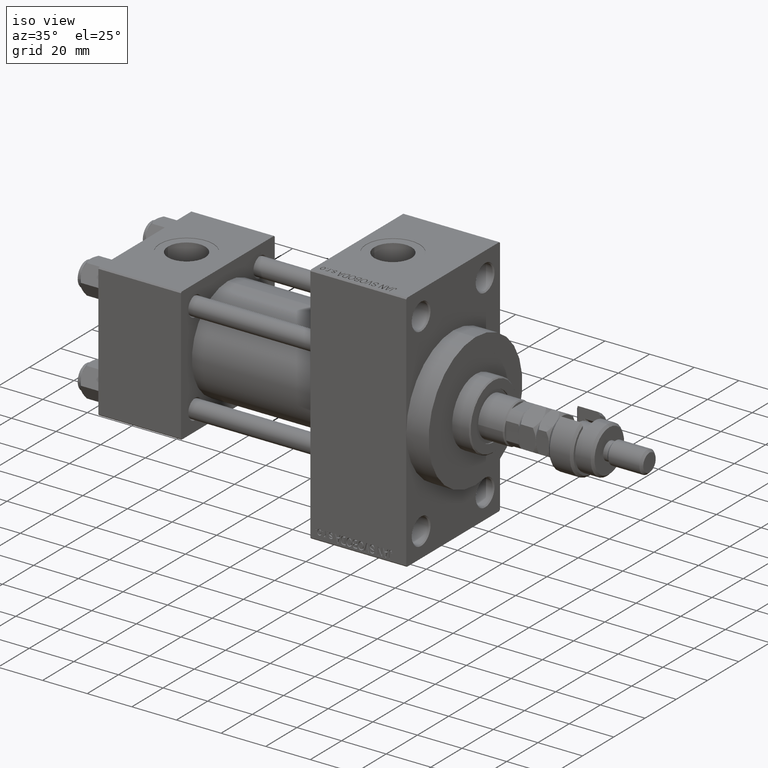
[diagram: clean part render]
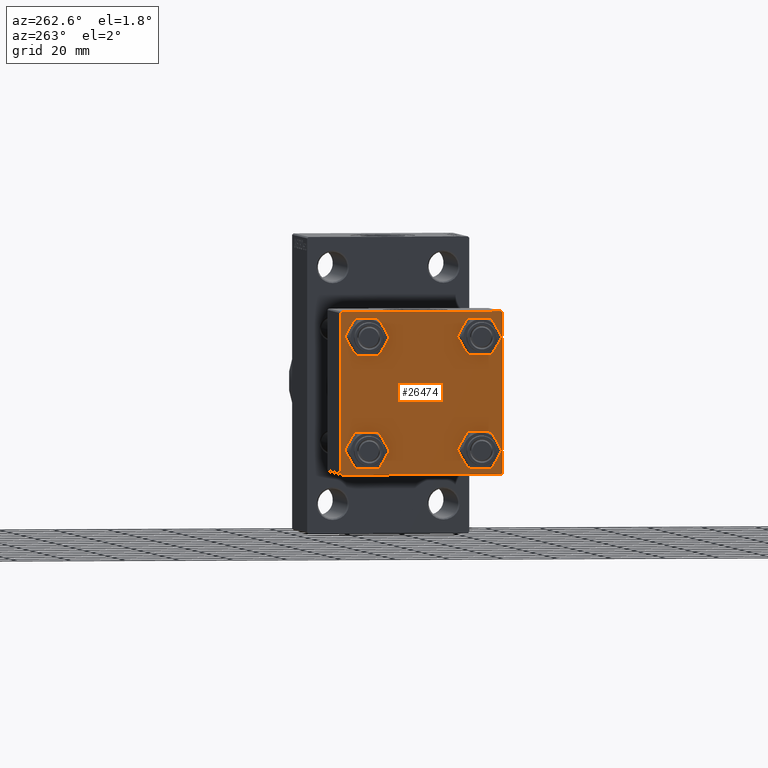
[diagram: tour spotlight — one face highlighted and labeled with its STEP entity id]
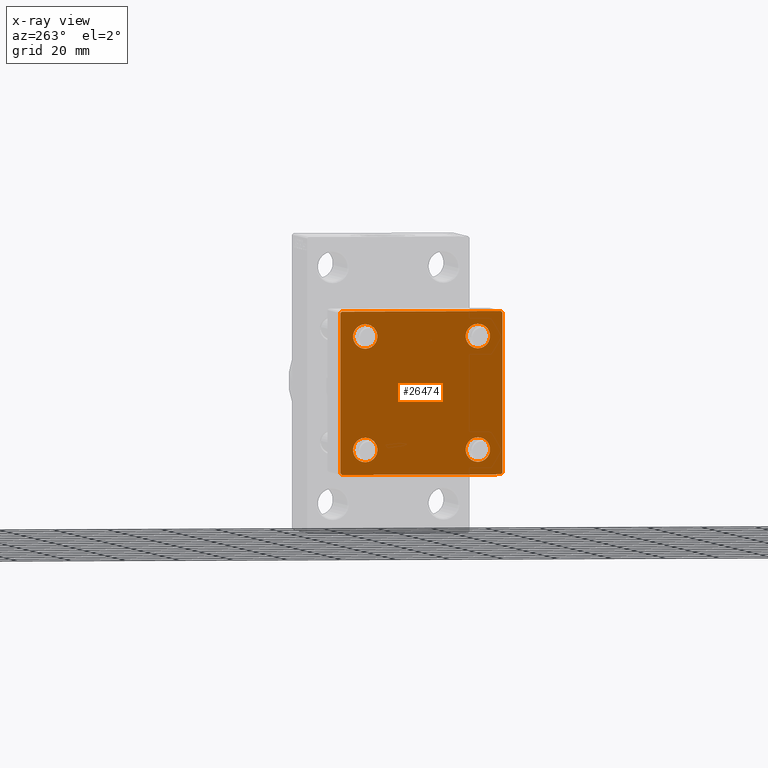
[diagram: x-ray of the same camera — body ghosted, this tour face saturated]
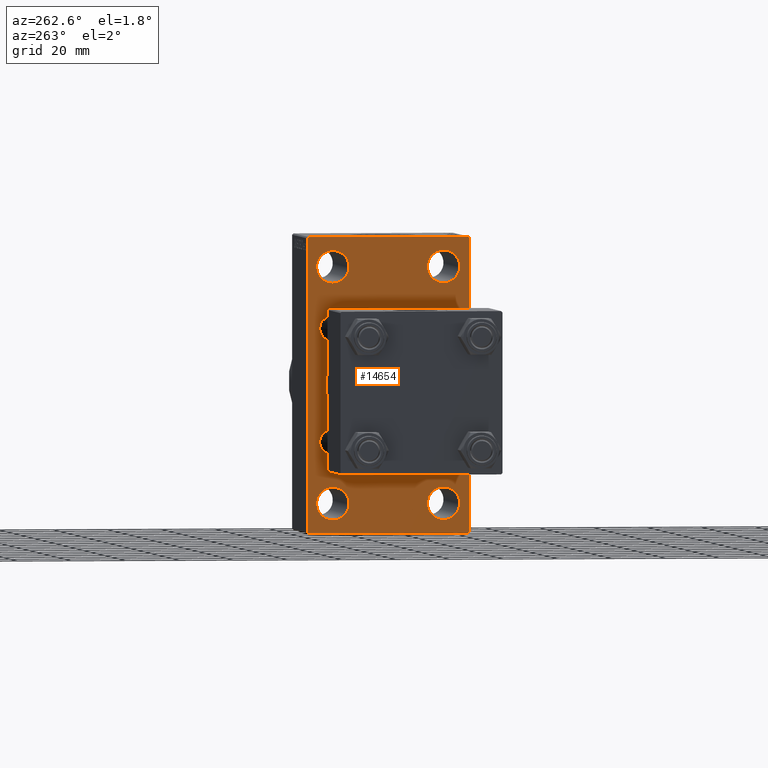
[diagram: tour spotlight — one face highlighted and labeled with its STEP entity id]
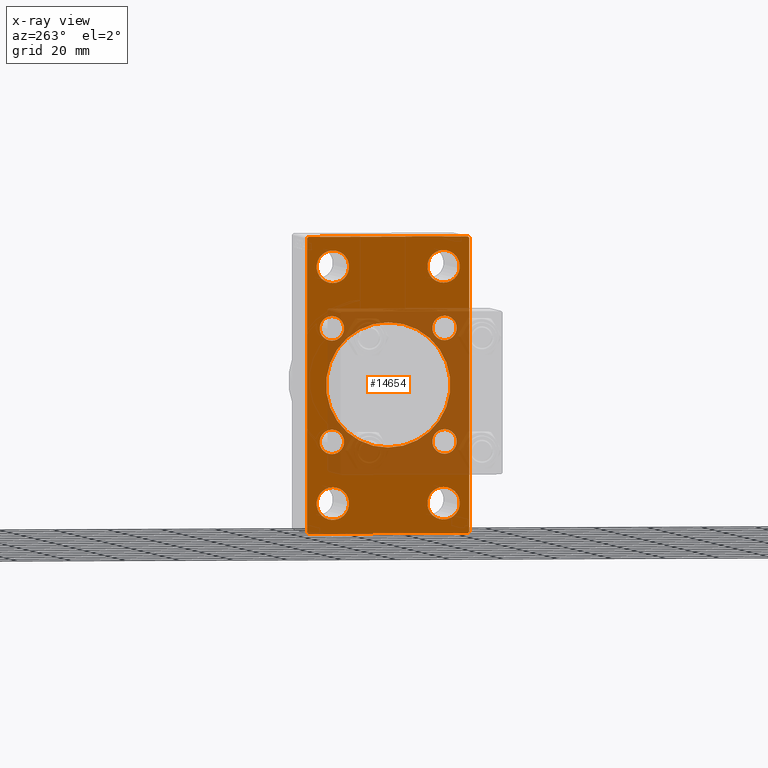
[diagram: x-ray of the same camera — body ghosted, this tour face saturated]
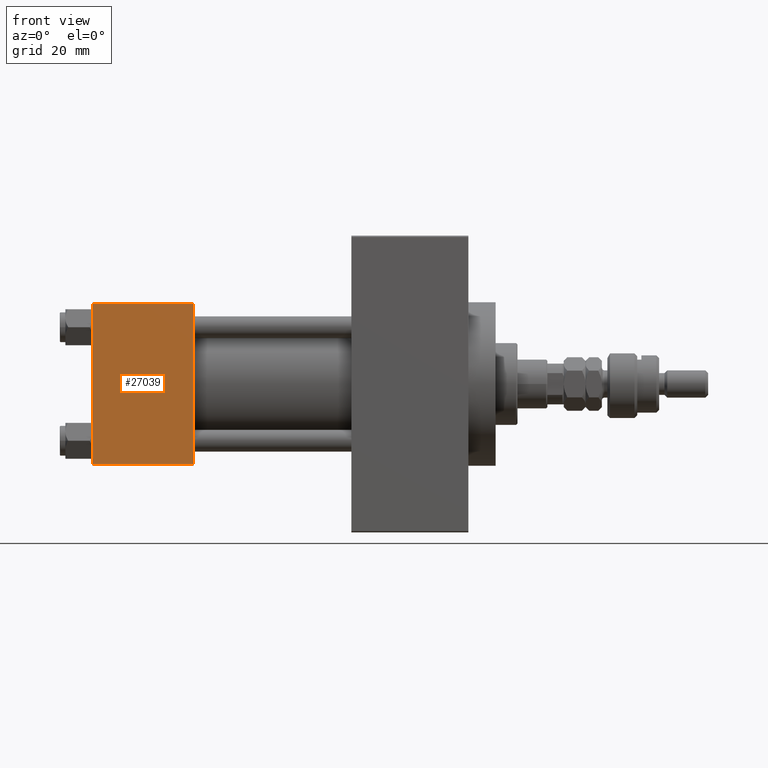
[diagram: tour spotlight — one face highlighted and labeled with its STEP entity id]
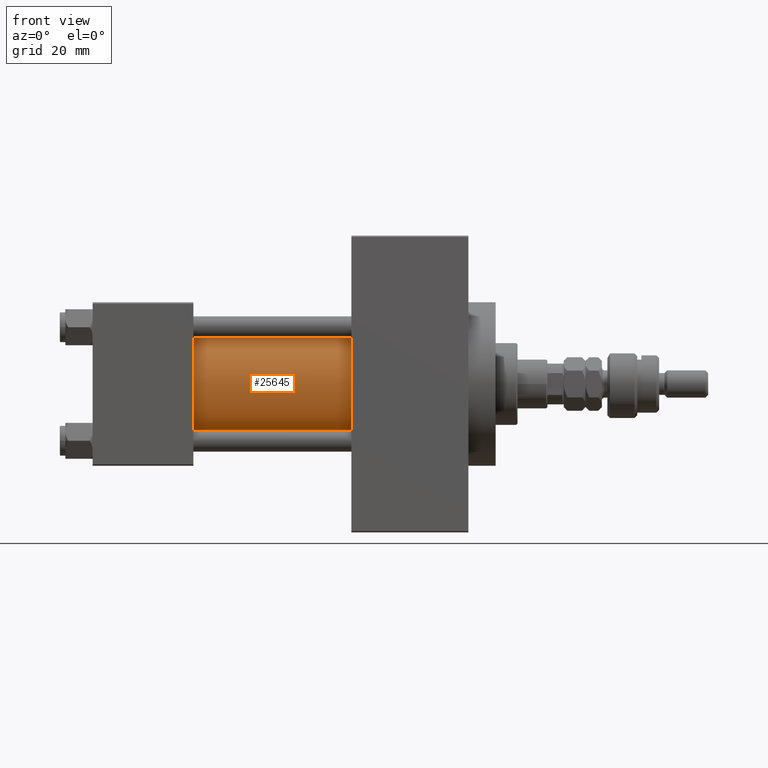
[diagram: tour spotlight — one face highlighted and labeled with its STEP entity id]
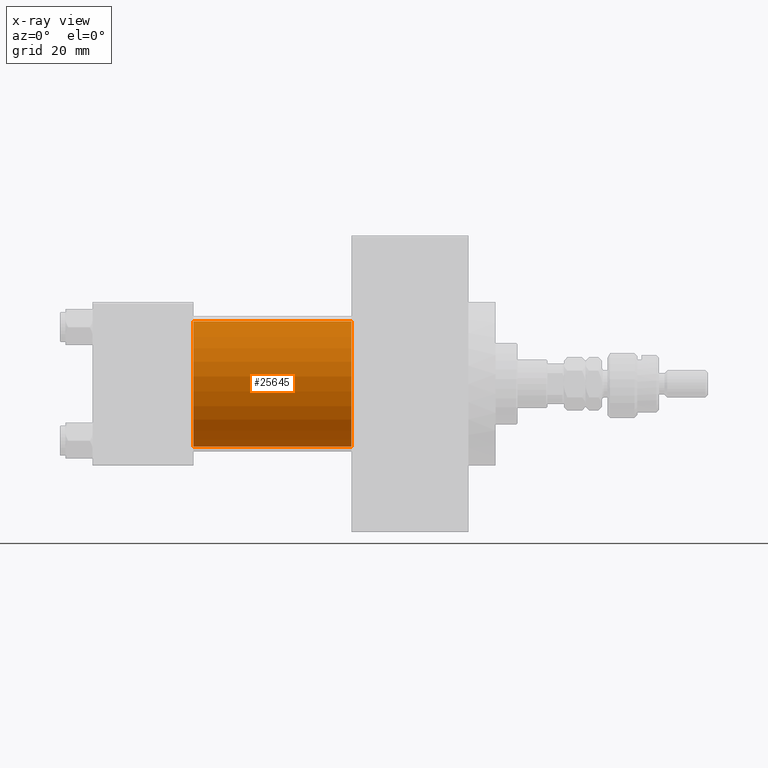
[diagram: x-ray of the same camera — body ghosted, this tour face saturated]
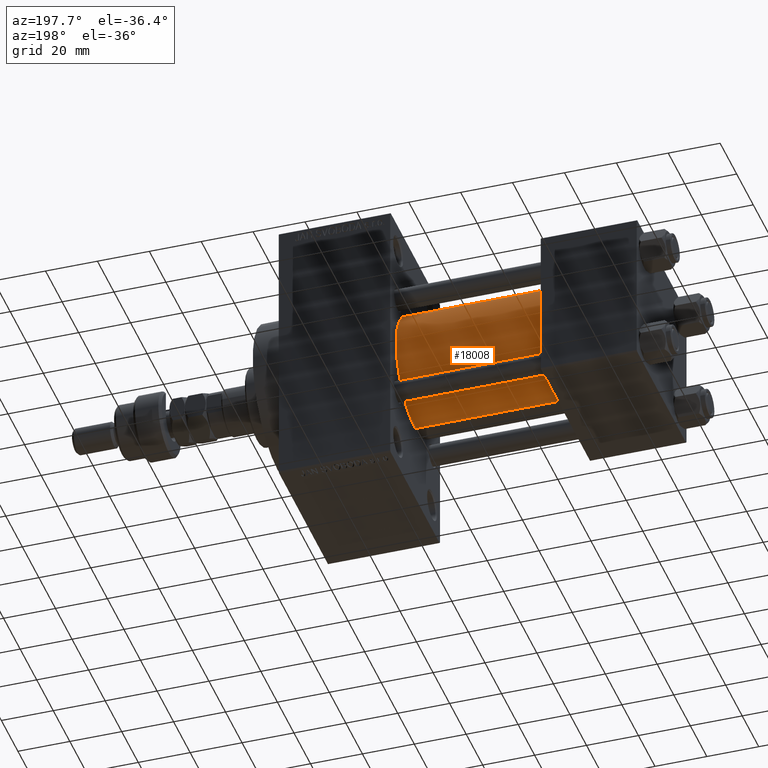
[diagram: tour spotlight — one face highlighted and labeled with its STEP entity id]
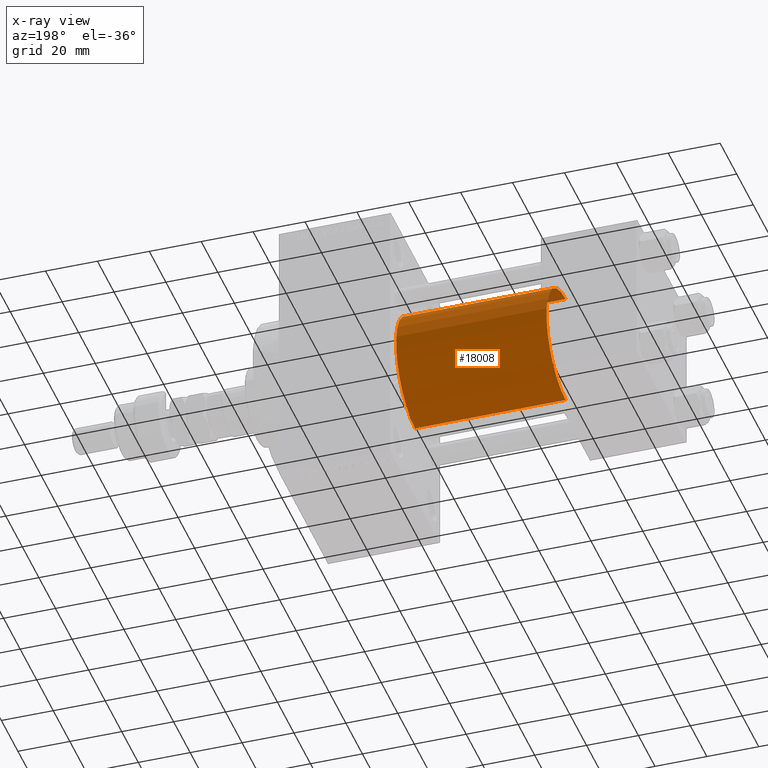
[diagram: x-ray of the same camera — body ghosted, this tour face saturated]
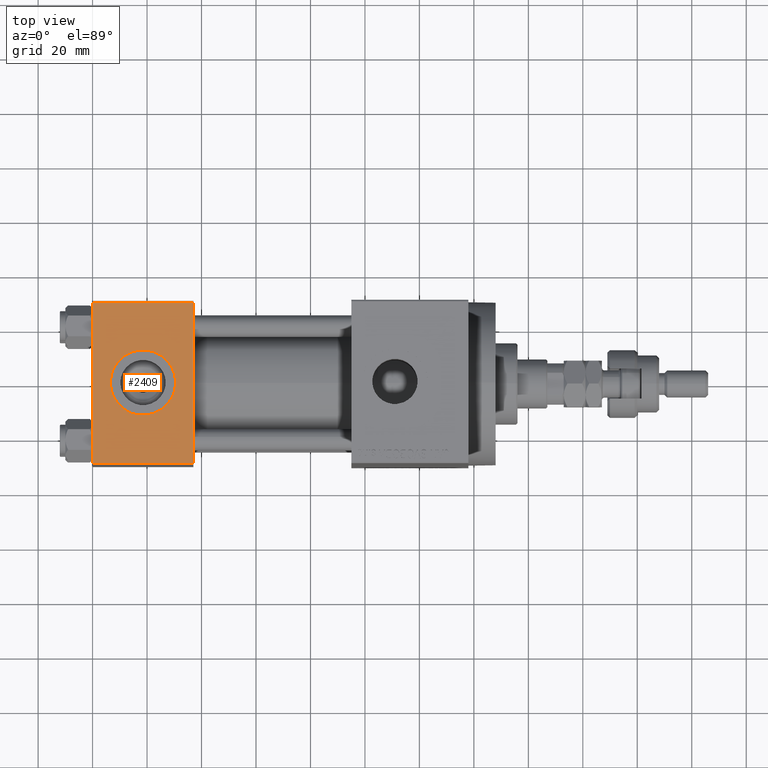
[diagram: tour spotlight — one face highlighted and labeled with its STEP entity id]
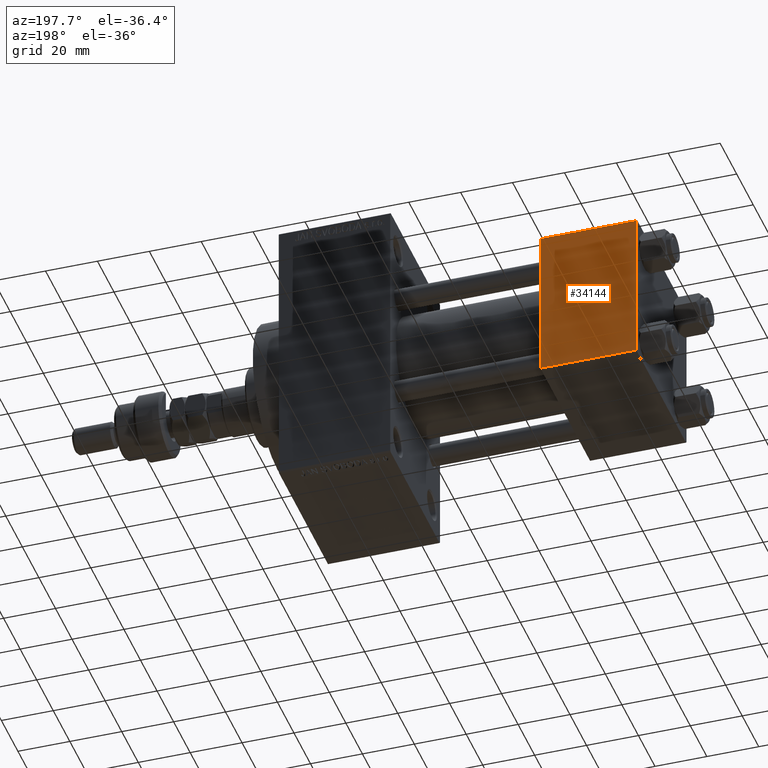
[diagram: tour spotlight — one face highlighted and labeled with its STEP entity id]
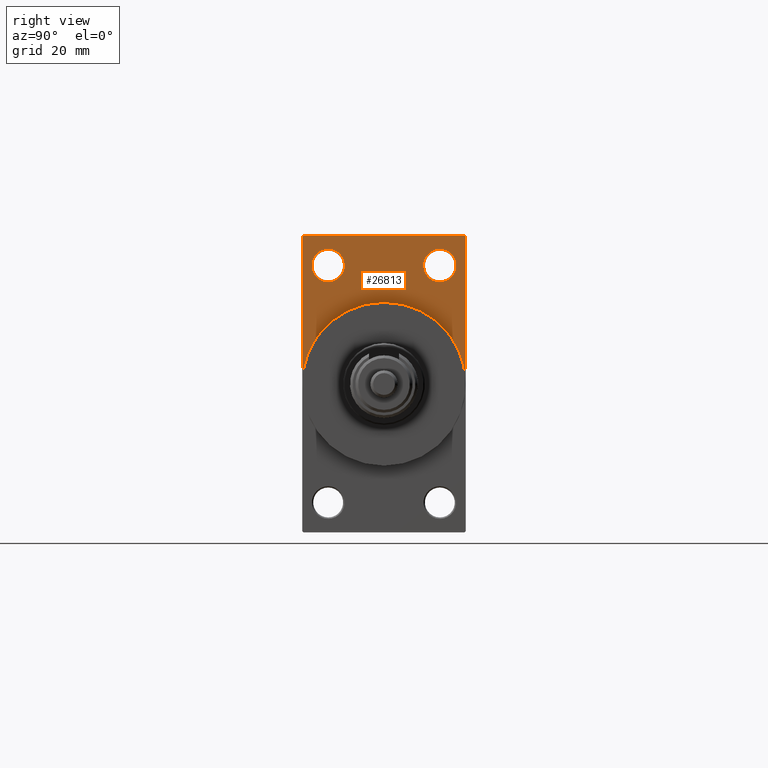
[diagram: tour spotlight — one face highlighted and labeled with its STEP entity id]
A machine part: a face-by-face anatomy tour. The part has 1189 B-rep faces; the first image is the clean iso view, then the 8 largest visible faces are spotlighted one at a time (largest first), each with its STEP entity span.

Face 1 — auxiliary view, entity #26474. An x-ray twin of the same camera follows (body ghosted, this face saturated) — the face is partly hidden behind the body. In plain terms, the highlighted planar face has unit normal (-1, 0, 0).
Definition (entity closure, byte-faithful):
#80 = CARTESIAN_POINT ( 'NONE',  ( 0.000000000000000000, -20.84999999999999076, -16.34999999999998721 ) ) ;
#1025 = VECTOR ( 'NONE', #28470, 1000.000000000000114 ) ;
#1085 = VECTOR ( 'NONE', #16200, 1000.000000000000000 ) ;
#1775 = LINE ( 'NONE', #13409, #28474 ) ;
#2584 = DIRECTION ( 'NONE',  ( 1.000000000000000000, -0.000000000000000000, 0.000000000000000000 ) ) ;
#3270 = CARTESIAN_POINT ( 'NONE',  ( 0.000000000000000000, 29.49999999999997868, -30.00000000000000000 ) ) ;
#4352 = CIRCLE ( 'NONE', #43122, 4.500000000000017764 ) ;
#5144 = ORIENTED_EDGE ( 'NONE', *, *, #12463, .T. ) ;
#5858 = LINE ( 'NONE', #21536, #23059 ) ;
#6648 = VECTOR ( 'NONE', #28929, 1000.000000000000000 ) ;
#6750 = ORIENTED_EDGE ( 'NONE', *, *, #21097, .T. ) ;
#7264 = DIRECTION ( 'NONE',  ( 1.000000000000000000, -0.000000000000000000, 0.000000000000000000 ) ) ;
#7752 = DIRECTION ( 'NONE',  ( 0.000000000000000000, 0.000000000000000000, 1.000000000000000000 ) ) ;
#8223 = LINE ( 'NONE', #47193, #1025 ) ;
#8285 = DIRECTION ( 'NONE',  ( 0.000000000000000000, 0.000000000000000000, 1.000000000000000000 ) ) ;
#8429 = ORIENTED_EDGE ( 'NONE', *, *, #12260, .T. ) ;
#8749 = CARTESIAN_POINT ( 'NONE',  ( -0.000000000000000000, -29.74999999999999645, 29.74999999999999645 ) ) ;
#8785 = EDGE_CURVE ( 'NONE', #16597, #17061, #24863, .T. ) ;
#9338 = EDGE_CURVE ( 'NONE', #19041, #16754, #27642, .T. ) ;
#9865 = DIRECTION ( 'NONE',  ( -0.000000000000000000, 0.000000000000000000, 1.000000000000000000 ) ) ;
#10610 = FACE_BOUND ( 'NONE', #38920, .T. ) ;
#11490 = AXIS2_PLACEMENT_3D ( 'NONE', #26028, #40996, #9865 ) ;
#11676 = LINE ( 'NONE', #15703, #1085 ) ;
#11691 = AXIS2_PLACEMENT_3D ( 'NONE', #13555, #32532, #47718 ) ;
#11725 = EDGE_CURVE ( 'NONE', #36609, #14399, #11676, .T. ) ;
#11994 = CARTESIAN_POINT ( 'NONE',  ( 0.000000000000000000, 29.99999999999999289, 29.50000000000000000 ) ) ;
#12185 = DIRECTION ( 'NONE',  ( 1.000000000000000000, -0.000000000000000000, 0.000000000000000000 ) ) ;
#12213 = ORIENTED_EDGE ( 'NONE', *, *, #27797, .T. ) ;
#12260 = EDGE_CURVE ( 'NONE', #18081, #28051, #4352, .T. ) ;
#12463 = EDGE_CURVE ( 'NONE', #28051, #18081, #23748, .T. ) ;
#12771 = EDGE_LOOP ( 'NONE', ( #15943, #22381, #13300, #38485, #34039, #39056, #33463, #12213 ) ) ;
#12934 = CARTESIAN_POINT ( 'NONE',  ( 0.000000000000000000, -29.50000000000000000, -30.00000000000000711 ) ) ;
#13024 = VECTOR ( 'NONE', #20366, 1000.000000000000114 ) ;
#13269 = ORIENTED_EDGE ( 'NONE', *, *, #47348, .T. ) ;
#13300 = ORIENTED_EDGE ( 'NONE', *, *, #26393, .T. ) ;
#13409 = CARTESIAN_POINT ( 'NONE',  ( 0.000000000000000000, 29.99999999999999289, -30.00000000000000000 ) ) ;
#13555 = CARTESIAN_POINT ( 'NONE',  ( 0.000000000000000000, -20.84999999999999076, 20.85000000000000497 ) ) ;
#14399 = VERTEX_POINT ( 'NONE', #42940 ) ;
#14459 = DIRECTION ( 'NONE',  ( 0.000000000000000000, 0.000000000000000000, 1.000000000000000000 ) ) ;
#14514 = EDGE_CURVE ( 'NONE', #21360, #27552, #19755, .T. ) ;
#15703 = CARTESIAN_POINT ( 'NONE',  ( 0.000000000000000000, -30.00000000000000000, 29.99999999999999289 ) ) ;
#15876 = VERTEX_POINT ( 'NONE', #27349 ) ;
#15943 = ORIENTED_EDGE ( 'NONE', *, *, #8785, .T. ) ;
#16185 = VERTEX_POINT ( 'NONE', #19618 ) ;
#16200 = DIRECTION ( 'NONE',  ( 0.000000000000000000, 0.000000000000000000, -1.000000000000000000 ) ) ;
#16597 = VERTEX_POINT ( 'NONE', #11994 ) ;
#16754 = VERTEX_POINT ( 'NONE', #45146 ) ;
#17061 = VERTEX_POINT ( 'NONE', #33693 ) ;
#17377 = CARTESIAN_POINT ( 'NONE',  ( 0.000000000000000000, 29.74999999999957723, -29.75000000000040501 ) ) ;
#17458 = FACE_BOUND ( 'NONE', #47090, .T. ) ;
#17592 = CIRCLE ( 'NONE', #31300, 4.500000000000017764 ) ;
#17763 = CARTESIAN_POINT ( 'NONE',  ( 0.000000000000000000, 20.84999999999999787, 20.85000000000000142 ) ) ;
#17867 = DIRECTION ( 'NONE',  ( -0.000000000000000000, -0.7071067811865574537, -0.7071067811865376918 ) ) ;
#18081 = VERTEX_POINT ( 'NONE', #36133 ) ;
#19041 = VERTEX_POINT ( 'NONE', #26452 ) ;
#19499 = CARTESIAN_POINT ( 'NONE',  ( 0.000000000000000000, -20.84999999999999076, 20.85000000000000497 ) ) ;
#19618 = CARTESIAN_POINT ( 'NONE',  ( 0.000000000000000000, 20.84999999999999787, 16.34999999999998366 ) ) ;
#19738 = EDGE_CURVE ( 'NONE', #16754, #19041, #29660, .T. ) ;
#19755 = CIRCLE ( 'NONE', #11691, 4.500000000000017764 ) ;
#20366 = DIRECTION ( 'NONE',  ( -0.000000000000000000, 0.7071067811865474617, 0.7071067811865474617 ) ) ;
#21059 = EDGE_CURVE ( 'NONE', #22912, #15876, #25204, .T. ) ;
#21097 = EDGE_CURVE ( 'NONE', #27552, #21360, #17592, .T. ) ;
#21360 = VERTEX_POINT ( 'NONE', #23509 ) ;
#21536 = CARTESIAN_POINT ( 'NONE',  ( 0.000000000000000000, -29.75000000000001066, -29.75000000000001066 ) ) ;
#21553 = CARTESIAN_POINT ( 'NONE',  ( 0.000000000000000000, -30.00000000000000000, 29.49999999999999289 ) ) ;
#22381 = ORIENTED_EDGE ( 'NONE', *, *, #33980, .T. ) ;
#22912 = VERTEX_POINT ( 'NONE', #31486 ) ;
#23059 = VECTOR ( 'NONE', #29128, 1000.000000000000114 ) ;
#23464 = DIRECTION ( 'NONE',  ( 1.000000000000000000, -0.000000000000000000, 0.000000000000000000 ) ) ;
#23509 = CARTESIAN_POINT ( 'NONE',  ( 0.000000000000000000, -20.84999999999999076, 25.35000000000002274 ) ) ;
#23536 = VERTEX_POINT ( 'NONE', #3270 ) ;
#23748 = CIRCLE ( 'NONE', #25357, 4.500000000000017764 ) ;
#24160 = EDGE_CURVE ( 'NONE', #36609, #15876, #48238, .T. ) ;
#24192 = DIRECTION ( 'NONE',  ( 1.000000000000000000, -0.000000000000000000, 0.000000000000000000 ) ) ;
#24253 = CARTESIAN_POINT ( 'NONE',  ( 0.000000000000000000, -20.84999999999999076, -20.85000000000000497 ) ) ;
#24541 = EDGE_LOOP ( 'NONE', ( #48775, #35830 ) ) ;
#24863 = LINE ( 'NONE', #40313, #6648 ) ;
#25189 = AXIS2_PLACEMENT_3D ( 'NONE', #35354, #24192, #27733 ) ;
#25204 = LINE ( 'NONE', #30909, #39409 ) ;
#25357 = AXIS2_PLACEMENT_3D ( 'NONE', #42175, #7264, #7752 ) ;
#25461 = LINE ( 'NONE', #17377, #35193 ) ;
#25675 = EDGE_CURVE ( 'NONE', #35589, #16185, #47003, .T. ) ;
#25760 = DIRECTION ( 'NONE',  ( 1.000000000000000000, -0.000000000000000000, 0.000000000000000000 ) ) ;
#26028 = CARTESIAN_POINT ( 'NONE',  ( 0.000000000000000000, 0.000000000000000000, 0.000000000000000000 ) ) ;
#26393 = EDGE_CURVE ( 'NONE', #23536, #37871, #1775, .T. ) ;
#26452 = CARTESIAN_POINT ( 'NONE',  ( 0.000000000000000000, 20.84999999999999787, -16.34999999999998366 ) ) ;
#26474 = ADVANCED_FACE ( 'NONE', ( #29346, #10610, #48584, #17458, #32903 ), #45047, .T. ) ;
#27349 = CARTESIAN_POINT ( 'NONE',  ( 0.000000000000000000, -29.49999999999998579, 29.99999999999999289 ) ) ;
#27411 = ORIENTED_EDGE ( 'NONE', *, *, #14514, .T. ) ;
#27449 = DIRECTION ( 'NONE',  ( 0.000000000000000000, 0.000000000000000000, 1.000000000000000000 ) ) ;
#27552 = VERTEX_POINT ( 'NONE', #39426 ) ;
#27642 = CIRCLE ( 'NONE', #38969, 4.500000000000017764 ) ;
#27733 = DIRECTION ( 'NONE',  ( 0.000000000000000000, 0.000000000000000000, 1.000000000000000000 ) ) ;
#27797 = EDGE_CURVE ( 'NONE', #22912, #16597, #8223, .T. ) ;
#28051 = VERTEX_POINT ( 'NONE', #80 ) ;
#28470 = DIRECTION ( 'NONE',  ( 0.000000000000000000, 0.7071067811865474617, -0.7071067811865474617 ) ) ;
#28474 = VECTOR ( 'NONE', #35943, 1000.000000000000000 ) ;
#28745 = ORIENTED_EDGE ( 'NONE', *, *, #25675, .T. ) ;
#28929 = DIRECTION ( 'NONE',  ( 0.000000000000000000, 0.000000000000000000, -1.000000000000000000 ) ) ;
#29128 = DIRECTION ( 'NONE',  ( 0.000000000000000000, -0.7071067811865474617, 0.7071067811865474617 ) ) ;
#29346 = FACE_BOUND ( 'NONE', #47176, .T. ) ;
#29660 = CIRCLE ( 'NONE', #38535, 4.500000000000017764 ) ;
#30909 = CARTESIAN_POINT ( 'NONE',  ( 0.000000000000000000, 29.99999999999999289, 30.00000000000000000 ) ) ;
#31300 = AXIS2_PLACEMENT_3D ( 'NONE', #19499, #12185, #34971 ) ;
#31486 = CARTESIAN_POINT ( 'NONE',  ( 0.000000000000000000, 29.49999999999999289, 30.00000000000000000 ) ) ;
#32191 = AXIS2_PLACEMENT_3D ( 'NONE', #17763, #2584, #14459 ) ;
#32532 = DIRECTION ( 'NONE',  ( 1.000000000000000000, -0.000000000000000000, 0.000000000000000000 ) ) ;
#32903 = FACE_OUTER_BOUND ( 'NONE', #12771, .T. ) ;
#33463 = ORIENTED_EDGE ( 'NONE', *, *, #21059, .F. ) ;
#33617 = DIRECTION ( 'NONE',  ( 0.000000000000000000, 0.000000000000000000, 1.000000000000000000 ) ) ;
#33693 = CARTESIAN_POINT ( 'NONE',  ( 0.000000000000000000, 29.99999999999999289, -29.50000000000000000 ) ) ;
#33980 = EDGE_CURVE ( 'NONE', #17061, #23536, #25461, .T. ) ;
#34039 = ORIENTED_EDGE ( 'NONE', *, *, #11725, .F. ) ;
#34971 = DIRECTION ( 'NONE',  ( 0.000000000000000000, 0.000000000000000000, 1.000000000000000000 ) ) ;
#35070 = CARTESIAN_POINT ( 'NONE',  ( 0.000000000000000000, 20.84999999999999787, -20.85000000000000142 ) ) ;
#35193 = VECTOR ( 'NONE', #17867, 999.9999999999998863 ) ;
#35354 = CARTESIAN_POINT ( 'NONE',  ( 0.000000000000000000, 20.84999999999999787, 20.85000000000000142 ) ) ;
#35589 = VERTEX_POINT ( 'NONE', #46980 ) ;
#35830 = ORIENTED_EDGE ( 'NONE', *, *, #19738, .T. ) ;
#35943 = DIRECTION ( 'NONE',  ( 0.000000000000000000, -1.000000000000000000, -1.156482317317871725E-16 ) ) ;
#36133 = CARTESIAN_POINT ( 'NONE',  ( 0.000000000000000000, -20.84999999999999076, -25.35000000000002274 ) ) ;
#36364 = CIRCLE ( 'NONE', #32191, 4.500000000000017764 ) ;
#36609 = VERTEX_POINT ( 'NONE', #21553 ) ;
#37866 = EDGE_CURVE ( 'NONE', #37871, #14399, #5858, .T. ) ;
#37871 = VERTEX_POINT ( 'NONE', #12934 ) ;
#38485 = ORIENTED_EDGE ( 'NONE', *, *, #37866, .T. ) ;
#38535 = AXIS2_PLACEMENT_3D ( 'NONE', #42463, #23464, #8285 ) ;
#38920 = EDGE_LOOP ( 'NONE', ( #5144, #8429 ) ) ;
#38969 = AXIS2_PLACEMENT_3D ( 'NONE', #35070, #43422, #27449 ) ;
#39056 = ORIENTED_EDGE ( 'NONE', *, *, #24160, .T. ) ;
#39409 = VECTOR ( 'NONE', #44710, 1000.000000000000000 ) ;
#39426 = CARTESIAN_POINT ( 'NONE',  ( 0.000000000000000000, -20.84999999999999076, 16.34999999999998721 ) ) ;
#40313 = CARTESIAN_POINT ( 'NONE',  ( 0.000000000000000000, 29.99999999999999289, 30.00000000000000000 ) ) ;
#40996 = DIRECTION ( 'NONE',  ( -1.000000000000000000, 0.000000000000000000, -0.000000000000000000 ) ) ;
#42175 = CARTESIAN_POINT ( 'NONE',  ( 0.000000000000000000, -20.84999999999999076, -20.85000000000000497 ) ) ;
#42463 = CARTESIAN_POINT ( 'NONE',  ( 0.000000000000000000, 20.84999999999999787, -20.85000000000000142 ) ) ;
#42940 = CARTESIAN_POINT ( 'NONE',  ( 0.000000000000000000, -30.00000000000000000, -29.50000000000001776 ) ) ;
#43122 = AXIS2_PLACEMENT_3D ( 'NONE', #24253, #25760, #33617 ) ;
#43422 = DIRECTION ( 'NONE',  ( 1.000000000000000000, -0.000000000000000000, 0.000000000000000000 ) ) ;
#44710 = DIRECTION ( 'NONE',  ( 0.000000000000000000, -1.000000000000000000, -1.156482317317871725E-16 ) ) ;
#45047 = PLANE ( 'NONE',  #11490 ) ;
#45146 = CARTESIAN_POINT ( 'NONE',  ( 0.000000000000000000, 20.84999999999999787, -25.35000000000001918 ) ) ;
#46980 = CARTESIAN_POINT ( 'NONE',  ( 0.000000000000000000, 20.84999999999999787, 25.35000000000001918 ) ) ;
#47003 = CIRCLE ( 'NONE', #25189, 4.500000000000017764 ) ;
#47090 = EDGE_LOOP ( 'NONE', ( #28745, #13269 ) ) ;
#47176 = EDGE_LOOP ( 'NONE', ( #27411, #6750 ) ) ;
#47193 = CARTESIAN_POINT ( 'NONE',  ( 0.000000000000000000, 29.74999999999999645, 29.74999999999999645 ) ) ;
#47348 = EDGE_CURVE ( 'NONE', #16185, #35589, #36364, .T. ) ;
#47718 = DIRECTION ( 'NONE',  ( 0.000000000000000000, 0.000000000000000000, 1.000000000000000000 ) ) ;
#48238 = LINE ( 'NONE', #8749, #13024 ) ;
#48584 = FACE_BOUND ( 'NONE', #24541, .T. ) ;
#48775 = ORIENTED_EDGE ( 'NONE', *, *, #9338, .T. ) ;

Face 2 — auxiliary view, entity #14654. An x-ray twin of the same camera follows (body ghosted, this face saturated) — the face is partly hidden behind the body. In plain terms, the highlighted planar face has unit normal (-1, 0, 0).
Definition (entity closure, byte-faithful):
#24 = DIRECTION ( 'NONE',  ( 1.000000000000000000, -0.000000000000000000, 0.000000000000000000 ) ) ;
#110 = DIRECTION ( 'NONE',  ( 0.000000000000000000, -1.000000000000000000, 1.156482317317871478E-16 ) ) ;
#153 = ORIENTED_EDGE ( 'NONE', *, *, #38541, .T. ) ;
#220 = CIRCLE ( 'NONE', #7469, 4.500000000000007105 ) ;
#511 = CIRCLE ( 'NONE', #35229, 5.999999999999894307 ) ;
#580 = CARTESIAN_POINT ( 'NONE',  ( 95.00000000000000000, 20.84999999999999787, 20.85000000000000142 ) ) ;
#869 = DIRECTION ( 'NONE',  ( 0.000000000000000000, 0.000000000000000000, 1.000000000000000000 ) ) ;
#1403 = VERTEX_POINT ( 'NONE', #36852 ) ;
#1606 = DIRECTION ( 'NONE',  ( 0.000000000000000000, 0.000000000000000000, 1.000000000000000000 ) ) ;
#1767 = CIRCLE ( 'NONE', #16277, 23.00000000000000000 ) ;
#1914 = CARTESIAN_POINT ( 'NONE',  ( 95.00000000000000000, 20.84999999999999787, -20.85000000000000142 ) ) ;
#2149 = CARTESIAN_POINT ( 'NONE',  ( 95.00000000000000000, -20.84999999999999076, 20.85000000000000497 ) ) ;
#2247 = DIRECTION ( 'NONE',  ( 1.000000000000000000, -0.000000000000000000, 0.000000000000000000 ) ) ;
#2274 = EDGE_CURVE ( 'NONE', #43861, #19161, #12139, .T. ) ;
#2434 = VERTEX_POINT ( 'NONE', #25994 ) ;
#2869 = CARTESIAN_POINT ( 'NONE',  ( 95.00000000000000000, 29.99999999999999645, 54.49999999999999289 ) ) ;
#3009 = EDGE_CURVE ( 'NONE', #45014, #5014, #31558, .T. ) ;
#3029 = ORIENTED_EDGE ( 'NONE', *, *, #37117, .T. ) ;
#3385 = FACE_BOUND ( 'NONE', #12160, .T. ) ;
#3702 = AXIS2_PLACEMENT_3D ( 'NONE', #10602, #40988, #37196 ) ;
#3868 = DIRECTION ( 'NONE',  ( 0.000000000000000000, 0.000000000000000000, 1.000000000000000000 ) ) ;
#3922 = CIRCLE ( 'NONE', #20051, 5.999999999999894307 ) ;
#3938 = CARTESIAN_POINT ( 'NONE',  ( 95.00000000000000000, 29.50000000000002132, 54.49999999999999289 ) ) ;
#4573 = PLANE ( 'NONE',  #46444 ) ;
#5014 = VERTEX_POINT ( 'NONE', #12162 ) ;
#5142 = DIRECTION ( 'NONE',  ( 1.000000000000000000, -0.000000000000000000, 0.000000000000000000 ) ) ;
#5327 = DIRECTION ( 'NONE',  ( 0.000000000000000000, 0.000000000000000000, 1.000000000000000000 ) ) ;
#5569 = CARTESIAN_POINT ( 'NONE',  ( 95.00000000000000000, 2.146024240737012665E-16, -23.00000000000000000 ) ) ;
#5908 = VECTOR ( 'NONE', #29899, 1000.000000000000000 ) ;
#6040 = CARTESIAN_POINT ( 'NONE',  ( 95.00000000000000000, -20.50000000000000000, -43.50000000000000000 ) ) ;
#6292 = CARTESIAN_POINT ( 'NONE',  ( 95.00000000000000000, -20.50000000000000000, 43.50000000000000000 ) ) ;
#6466 = DIRECTION ( 'NONE',  ( 1.000000000000000000, 0.000000000000000000, 0.000000000000000000 ) ) ;
#6552 = AXIS2_PLACEMENT_3D ( 'NONE', #580, #38786, #3868 ) ;
#6569 = EDGE_CURVE ( 'NONE', #9137, #25489, #33710, .T. ) ;
#7013 = VERTEX_POINT ( 'NONE', #22716 ) ;
#7189 = FACE_BOUND ( 'NONE', #49323, .T. ) ;
#7469 = AXIS2_PLACEMENT_3D ( 'NONE', #17464, #16433, #40247 ) ;
#8168 = CARTESIAN_POINT ( 'NONE',  ( 95.00000000000000000, -42.00000000000008527, 41.99999999999979394 ) ) ;
#8427 = EDGE_CURVE ( 'NONE', #13427, #1403, #38252, .T. ) ;
#8876 = FACE_BOUND ( 'NONE', #43034, .T. ) ;
#8917 = CARTESIAN_POINT ( 'NONE',  ( 95.00000000000000000, -20.50000000000000000, -43.50000000000000000 ) ) ;
#9015 = CARTESIAN_POINT ( 'NONE',  ( 95.00000000000000000, -20.50000000000000000, 43.50000000000000000 ) ) ;
#9021 = EDGE_CURVE ( 'NONE', #36300, #26123, #13227, .T. ) ;
#9137 = VERTEX_POINT ( 'NONE', #3938 ) ;
#9176 = VECTOR ( 'NONE', #47549, 1000.000000000000000 ) ;
#9180 = ORIENTED_EDGE ( 'NONE', *, *, #40967, .T. ) ;
#9256 = VERTEX_POINT ( 'NONE', #24671 ) ;
#9526 = DIRECTION ( 'NONE',  ( 1.000000000000000000, -0.000000000000000000, 0.000000000000000000 ) ) ;
#9588 = CARTESIAN_POINT ( 'NONE',  ( 95.00000000000000000, -20.84999999999999076, 20.85000000000000497 ) ) ;
#9666 = EDGE_CURVE ( 'NONE', #20302, #36307, #12739, .T. ) ;
#9845 = CARTESIAN_POINT ( 'NONE',  ( 95.00000000000000000, -29.50000000000000355, -54.50000000000000000 ) ) ;
#9963 = DIRECTION ( 'NONE',  ( 0.000000000000000000, 0.000000000000000000, -1.000000000000000000 ) ) ;
#9990 = AXIS2_PLACEMENT_3D ( 'NONE', #17721, #36468, #5327 ) ;
#10033 = CIRCLE ( 'NONE', #48827, 5.999999999999894307 ) ;
#10106 = VECTOR ( 'NONE', #22278, 1000.000000000000000 ) ;
#10577 = CIRCLE ( 'NONE', #42086, 4.500000000000007105 ) ;
#10602 = CARTESIAN_POINT ( 'NONE',  ( 95.00000000000000000, 20.84999999999999787, 20.85000000000000142 ) ) ;
#10921 = AXIS2_PLACEMENT_3D ( 'NONE', #2149, #33012, #48453 ) ;
#10988 = FACE_BOUND ( 'NONE', #29222, .T. ) ;
#11588 = AXIS2_PLACEMENT_3D ( 'NONE', #1914, #25672, #25913 ) ;
#11664 = EDGE_LOOP ( 'NONE', ( #38129, #23477 ) ) ;
#11847 = ORIENTED_EDGE ( 'NONE', *, *, #37696, .T. ) ;
#12139 = CIRCLE ( 'NONE', #48540, 4.500000000000007105 ) ;
#12160 = EDGE_LOOP ( 'NONE', ( #14826, #48589 ) ) ;
#12162 = CARTESIAN_POINT ( 'NONE',  ( 95.00000000000000000, 20.84999999999999787, 16.34999999999999432 ) ) ;
#12196 = EDGE_CURVE ( 'NONE', #20302, #9256, #44276, .T. ) ;
#12739 = LINE ( 'NONE', #8168, #33356 ) ;
#12966 = DIRECTION ( 'NONE',  ( 0.000000000000000000, 0.000000000000000000, 1.000000000000000000 ) ) ;
#13227 = CIRCLE ( 'NONE', #39074, 5.999999999999894307 ) ;
#13328 = CARTESIAN_POINT ( 'NONE',  ( 95.00000000000000000, 20.84999999999999787, -25.35000000000000853 ) ) ;
#13427 = VERTEX_POINT ( 'NONE', #13328 ) ;
#14506 = CARTESIAN_POINT ( 'NONE',  ( 95.00000000000000000, -20.84999999999999076, 16.34999999999999787 ) ) ;
#14556 = LINE ( 'NONE', #29992, #27216 ) ;
#14654 = ADVANCED_FACE ( 'NONE', ( #10988, #26407, #23793, #35969, #39243, #7189, #49940, #8876, #3385, #18800 ), #4573, .T. ) ;
#14826 = ORIENTED_EDGE ( 'NONE', *, *, #25033, .T. ) ;
#14878 = VERTEX_POINT ( 'NONE', #37469 ) ;
#14974 = VECTOR ( 'NONE', #37344, 1000.000000000000114 ) ;
#15005 = VECTOR ( 'NONE', #9963, 1000.000000000000000 ) ;
#15087 = DIRECTION ( 'NONE',  ( 1.000000000000000000, -0.000000000000000000, 0.000000000000000000 ) ) ;
#15206 = EDGE_CURVE ( 'NONE', #7013, #48842, #22213, .T. ) ;
#15215 = ORIENTED_EDGE ( 'NONE', *, *, #2274, .T. ) ;
#16033 = DIRECTION ( 'NONE',  ( 1.000000000000000000, -0.000000000000000000, 0.000000000000000000 ) ) ;
#16174 = ORIENTED_EDGE ( 'NONE', *, *, #17929, .T. ) ;
#16277 = AXIS2_PLACEMENT_3D ( 'NONE', #41144, #6466, #26423 ) ;
#16433 = DIRECTION ( 'NONE',  ( 1.000000000000000000, -0.000000000000000000, 0.000000000000000000 ) ) ;
#16516 = AXIS2_PLACEMENT_3D ( 'NONE', #6292, #15087, #34088 ) ;
#16924 = CARTESIAN_POINT ( 'NONE',  ( 95.00000000000000000, 29.99999999999999645, -53.99999999999999289 ) ) ;
#17165 = DIRECTION ( 'NONE',  ( 1.000000000000000000, -0.000000000000000000, 0.000000000000000000 ) ) ;
#17309 = CARTESIAN_POINT ( 'NONE',  ( 95.00000000000000000, -20.50000000000000000, 49.49999999999989342 ) ) ;
#17464 = CARTESIAN_POINT ( 'NONE',  ( 95.00000000000000000, -20.84999999999999076, -20.85000000000000497 ) ) ;
#17721 = CARTESIAN_POINT ( 'NONE',  ( 95.00000000000000000, 20.50000000000000000, 43.50000000000000000 ) ) ;
#17929 = EDGE_CURVE ( 'NONE', #5014, #45014, #24739, .T. ) ;
#18078 = EDGE_CURVE ( 'NONE', #46653, #20386, #49802, .T. ) ;
#18341 = CARTESIAN_POINT ( 'NONE',  ( 95.00000000000000000, 41.99999999999998579, -41.99999999999998579 ) ) ;
#18518 = CARTESIAN_POINT ( 'NONE',  ( 95.00000000000000000, 20.50000000000000000, -49.49999999999989342 ) ) ;
#18800 = FACE_OUTER_BOUND ( 'NONE', #22056, .T. ) ;
#19161 = VERTEX_POINT ( 'NONE', #43916 ) ;
#19504 = CARTESIAN_POINT ( 'NONE',  ( 95.00000000000000000, -29.49999999999997513, 54.50000000000000000 ) ) ;
#20051 = AXIS2_PLACEMENT_3D ( 'NONE', #35298, #16033, #869 ) ;
#20302 = VERTEX_POINT ( 'NONE', #21872 ) ;
#20386 = VERTEX_POINT ( 'NONE', #48378 ) ;
#21519 = ORIENTED_EDGE ( 'NONE', *, *, #23133, .T. ) ;
#21758 = ORIENTED_EDGE ( 'NONE', *, *, #9666, .T. ) ;
#21872 = CARTESIAN_POINT ( 'NONE',  ( 95.00000000000000000, -30.00000000000000000, 53.99999999999997158 ) ) ;
#22056 = EDGE_LOOP ( 'NONE', ( #21519, #26532, #25194, #21758, #23664, #47263, #22853, #11847 ) ) ;
#22213 = CIRCLE ( 'NONE', #16516, 5.999999999999894307 ) ;
#22278 = DIRECTION ( 'NONE',  ( 0.000000000000000000, -0.7071067811865352493, 0.7071067811865597852 ) ) ;
#22716 = CARTESIAN_POINT ( 'NONE',  ( 95.00000000000000000, -20.50000000000000000, 37.50000000000009948 ) ) ;
#22853 = ORIENTED_EDGE ( 'NONE', *, *, #38887, .T. ) ;
#22860 = EDGE_LOOP ( 'NONE', ( #3029, #15215 ) ) ;
#22991 = CARTESIAN_POINT ( 'NONE',  ( 95.00000000000000000, -20.84999999999999076, -25.35000000000001208 ) ) ;
#23133 = EDGE_CURVE ( 'NONE', #14878, #35455, #49192, .T. ) ;
#23222 = ORIENTED_EDGE ( 'NONE', *, *, #30676, .T. ) ;
#23276 = CARTESIAN_POINT ( 'NONE',  ( 95.00000000000000000, 20.84999999999999787, 25.35000000000000853 ) ) ;
#23285 = DIRECTION ( 'NONE',  ( 0.000000000000000000, 0.000000000000000000, 1.000000000000000000 ) ) ;
#23451 = DIRECTION ( 'NONE',  ( 1.000000000000000000, 0.000000000000000000, 0.000000000000000000 ) ) ;
#23477 = ORIENTED_EDGE ( 'NONE', *, *, #29347, .T. ) ;
#23553 = ORIENTED_EDGE ( 'NONE', *, *, #26253, .T. ) ;
#23664 = ORIENTED_EDGE ( 'NONE', *, *, #41354, .F. ) ;
#23793 = FACE_BOUND ( 'NONE', #31449, .T. ) ;
#23836 = EDGE_CURVE ( 'NONE', #1403, #13427, #10577, .T. ) ;
#24008 = DIRECTION ( 'NONE',  ( 0.000000000000000000, 0.000000000000000000, 1.000000000000000000 ) ) ;
#24671 = CARTESIAN_POINT ( 'NONE',  ( 95.00000000000000000, -30.00000000000000000, -53.99999999999998579 ) ) ;
#24739 = CIRCLE ( 'NONE', #3702, 4.500000000000007105 ) ;
#25033 = EDGE_CURVE ( 'NONE', #20386, #46653, #1767, .T. ) ;
#25119 = DIRECTION ( 'NONE',  ( -0.000000000000000000, 0.7071067811865451302, 0.7071067811865500152 ) ) ;
#25194 = ORIENTED_EDGE ( 'NONE', *, *, #12196, .F. ) ;
#25339 = CIRCLE ( 'NONE', #9990, 5.999999999999894307 ) ;
#25367 = CIRCLE ( 'NONE', #35080, 5.999999999999894307 ) ;
#25489 = VERTEX_POINT ( 'NONE', #46609 ) ;
#25616 = AXIS2_PLACEMENT_3D ( 'NONE', #35920, #48326, #24008 ) ;
#25672 = DIRECTION ( 'NONE',  ( 1.000000000000000000, -0.000000000000000000, 0.000000000000000000 ) ) ;
#25913 = DIRECTION ( 'NONE',  ( 0.000000000000000000, 0.000000000000000000, 1.000000000000000000 ) ) ;
#25927 = LINE ( 'NONE', #18341, #14974 ) ;
#25994 = CARTESIAN_POINT ( 'NONE',  ( 95.00000000000000000, -20.50000000000000000, -49.49999999999989342 ) ) ;
#26123 = VERTEX_POINT ( 'NONE', #28654 ) ;
#26253 = EDGE_CURVE ( 'NONE', #2434, #36203, #34114, .T. ) ;
#26407 = FACE_BOUND ( 'NONE', #34937, .T. ) ;
#26423 = DIRECTION ( 'NONE',  ( 0.000000000000000000, 0.000000000000000000, -1.000000000000000000 ) ) ;
#26532 = ORIENTED_EDGE ( 'NONE', *, *, #35321, .T. ) ;
#26650 = DIRECTION ( 'NONE',  ( -0.000000000000000000, 0.000000000000000000, 1.000000000000000000 ) ) ;
#27195 = EDGE_CURVE ( 'NONE', #39931, #42826, #220, .T. ) ;
#27216 = VECTOR ( 'NONE', #110, 1000.000000000000000 ) ;
#27973 = ORIENTED_EDGE ( 'NONE', *, *, #3009, .T. ) ;
#28009 = DIRECTION ( 'NONE',  ( 0.000000000000000000, 0.000000000000000000, -1.000000000000000000 ) ) ;
#28654 = CARTESIAN_POINT ( 'NONE',  ( 95.00000000000000000, 20.50000000000000000, 37.50000000000009948 ) ) ;
#28953 = LINE ( 'NONE', #2869, #15005 ) ;
#29222 = EDGE_LOOP ( 'NONE', ( #153, #43784 ) ) ;
#29347 = EDGE_CURVE ( 'NONE', #26123, #36300, #25339, .T. ) ;
#29507 = CARTESIAN_POINT ( 'NONE',  ( 95.00000000000000000, -20.84999999999999076, -16.34999999999999787 ) ) ;
#29899 = DIRECTION ( 'NONE',  ( 0.000000000000000000, 0.7071067811865279218, -0.7071067811865671127 ) ) ;
#29936 = CARTESIAN_POINT ( 'NONE',  ( 95.00000000000000000, -20.50000000000000000, -37.50000000000009948 ) ) ;
#29992 = CARTESIAN_POINT ( 'NONE',  ( 95.00000000000000000, 29.99999999999999645, 54.49999999999999289 ) ) ;
#30193 = DIRECTION ( 'NONE',  ( 0.000000000000000000, -1.000000000000000000, -1.156482317317871478E-16 ) ) ;
#30305 = EDGE_CURVE ( 'NONE', #32299, #40965, #10033, .T. ) ;
#30676 = EDGE_CURVE ( 'NONE', #36203, #2434, #25367, .T. ) ;
#30849 = CARTESIAN_POINT ( 'NONE',  ( 95.00000000000000000, -42.00000000000051159, -41.99999999999905498 ) ) ;
#31449 = EDGE_LOOP ( 'NONE', ( #41446, #34634 ) ) ;
#31558 = CIRCLE ( 'NONE', #6552, 4.500000000000007105 ) ;
#32061 = CARTESIAN_POINT ( 'NONE',  ( 95.00000000000000000, -2.602085213965210642E-15, 0.000000000000000000 ) ) ;
#32299 = VERTEX_POINT ( 'NONE', #18518 ) ;
#32750 = CIRCLE ( 'NONE', #10921, 4.500000000000007105 ) ;
#32899 = CIRCLE ( 'NONE', #25616, 4.500000000000007105 ) ;
#33012 = DIRECTION ( 'NONE',  ( 1.000000000000000000, -0.000000000000000000, 0.000000000000000000 ) ) ;
#33356 = VECTOR ( 'NONE', #25119, 1000.000000000000114 ) ;
#33710 = LINE ( 'NONE', #49373, #5908 ) ;
#34088 = DIRECTION ( 'NONE',  ( 0.000000000000000000, 0.000000000000000000, 1.000000000000000000 ) ) ;
#34114 = CIRCLE ( 'NONE', #44647, 5.999999999999894307 ) ;
#34634 = ORIENTED_EDGE ( 'NONE', *, *, #30305, .T. ) ;
#34937 = EDGE_LOOP ( 'NONE', ( #23222, #23553 ) ) ;
#35080 = AXIS2_PLACEMENT_3D ( 'NONE', #6040, #36421, #40206 ) ;
#35229 = AXIS2_PLACEMENT_3D ( 'NONE', #9015, #9526, #47220 ) ;
#35298 = CARTESIAN_POINT ( 'NONE',  ( 95.00000000000000000, 20.50000000000000000, -43.50000000000000000 ) ) ;
#35321 = EDGE_CURVE ( 'NONE', #35455, #9256, #49351, .T. ) ;
#35455 = VERTEX_POINT ( 'NONE', #9845 ) ;
#35920 = CARTESIAN_POINT ( 'NONE',  ( 95.00000000000000000, -20.84999999999999076, -20.85000000000000497 ) ) ;
#35969 = FACE_BOUND ( 'NONE', #11664, .T. ) ;
#36182 = CARTESIAN_POINT ( 'NONE',  ( 95.00000000000000000, -30.00000000000000000, 54.50000000000000000 ) ) ;
#36203 = VERTEX_POINT ( 'NONE', #29936 ) ;
#36300 = VERTEX_POINT ( 'NONE', #37547 ) ;
#36307 = VERTEX_POINT ( 'NONE', #19504 ) ;
#36421 = DIRECTION ( 'NONE',  ( 1.000000000000000000, -0.000000000000000000, 0.000000000000000000 ) ) ;
#36468 = DIRECTION ( 'NONE',  ( 1.000000000000000000, -0.000000000000000000, 0.000000000000000000 ) ) ;
#36852 = CARTESIAN_POINT ( 'NONE',  ( 95.00000000000000000, 20.84999999999999787, -16.34999999999999432 ) ) ;
#37079 = CARTESIAN_POINT ( 'NONE',  ( 95.00000000000000000, 29.99999999999999645, -54.49999999999999289 ) ) ;
#37117 = EDGE_CURVE ( 'NONE', #19161, #43861, #32750, .T. ) ;
#37196 = DIRECTION ( 'NONE',  ( 0.000000000000000000, 0.000000000000000000, 1.000000000000000000 ) ) ;
#37344 = DIRECTION ( 'NONE',  ( -0.000000000000000000, -0.7071067811865474617, -0.7071067811865474617 ) ) ;
#37469 = CARTESIAN_POINT ( 'NONE',  ( 95.00000000000000000, 29.49999999999999645, -54.49999999999999289 ) ) ;
#37547 = CARTESIAN_POINT ( 'NONE',  ( 95.00000000000000000, 20.50000000000000000, 49.49999999999989342 ) ) ;
#37693 = AXIS2_PLACEMENT_3D ( 'NONE', #32061, #23451, #28009 ) ;
#37696 = EDGE_CURVE ( 'NONE', #41005, #14878, #25927, .T. ) ;
#38050 = VECTOR ( 'NONE', #30193, 1000.000000000000000 ) ;
#38129 = ORIENTED_EDGE ( 'NONE', *, *, #9021, .T. ) ;
#38252 = CIRCLE ( 'NONE', #11588, 4.500000000000007105 ) ;
#38541 = EDGE_CURVE ( 'NONE', #48842, #7013, #511, .T. ) ;
#38786 = DIRECTION ( 'NONE',  ( 1.000000000000000000, -0.000000000000000000, 0.000000000000000000 ) ) ;
#38887 = EDGE_CURVE ( 'NONE', #25489, #41005, #28953, .T. ) ;
#39074 = AXIS2_PLACEMENT_3D ( 'NONE', #39234, #24, #23285 ) ;
#39234 = CARTESIAN_POINT ( 'NONE',  ( 95.00000000000000000, 20.50000000000000000, 43.50000000000000000 ) ) ;
#39243 = FACE_BOUND ( 'NONE', #22860, .T. ) ;
#39741 = ORIENTED_EDGE ( 'NONE', *, *, #23836, .T. ) ;
#39752 = CARTESIAN_POINT ( 'NONE',  ( 95.00000000000000000, 0.000000000000000000, 0.000000000000000000 ) ) ;
#39931 = VERTEX_POINT ( 'NONE', #22991 ) ;
#40206 = DIRECTION ( 'NONE',  ( 0.000000000000000000, 0.000000000000000000, 1.000000000000000000 ) ) ;
#40247 = DIRECTION ( 'NONE',  ( 0.000000000000000000, 0.000000000000000000, 1.000000000000000000 ) ) ;
#40693 = ORIENTED_EDGE ( 'NONE', *, *, #27195, .T. ) ;
#40965 = VERTEX_POINT ( 'NONE', #47295 ) ;
#40967 = EDGE_CURVE ( 'NONE', #42826, #39931, #32899, .T. ) ;
#40988 = DIRECTION ( 'NONE',  ( 1.000000000000000000, -0.000000000000000000, 0.000000000000000000 ) ) ;
#41005 = VERTEX_POINT ( 'NONE', #16924 ) ;
#41144 = CARTESIAN_POINT ( 'NONE',  ( 95.00000000000000000, -2.602085213965210642E-15, 0.000000000000000000 ) ) ;
#41354 = EDGE_CURVE ( 'NONE', #9137, #36307, #14556, .T. ) ;
#41446 = ORIENTED_EDGE ( 'NONE', *, *, #48717, .T. ) ;
#42086 = AXIS2_PLACEMENT_3D ( 'NONE', #48304, #2247, #43495 ) ;
#42826 = VERTEX_POINT ( 'NONE', #29507 ) ;
#43034 = EDGE_LOOP ( 'NONE', ( #9180, #40693 ) ) ;
#43040 = DIRECTION ( 'NONE',  ( -1.000000000000000000, 0.000000000000000000, -0.000000000000000000 ) ) ;
#43495 = DIRECTION ( 'NONE',  ( 0.000000000000000000, 0.000000000000000000, 1.000000000000000000 ) ) ;
#43784 = ORIENTED_EDGE ( 'NONE', *, *, #15206, .T. ) ;
#43861 = VERTEX_POINT ( 'NONE', #14506 ) ;
#43916 = CARTESIAN_POINT ( 'NONE',  ( 95.00000000000000000, -20.84999999999999076, 25.35000000000001208 ) ) ;
#44276 = LINE ( 'NONE', #36182, #9176 ) ;
#44380 = CARTESIAN_POINT ( 'NONE',  ( 95.00000000000000000, 20.50000000000000000, -43.50000000000000000 ) ) ;
#44647 = AXIS2_PLACEMENT_3D ( 'NONE', #8917, #47641, #12966 ) ;
#45014 = VERTEX_POINT ( 'NONE', #23276 ) ;
#46444 = AXIS2_PLACEMENT_3D ( 'NONE', #39752, #43040, #26650 ) ;
#46609 = CARTESIAN_POINT ( 'NONE',  ( 95.00000000000000000, 29.99999999999999645, 53.99999999999999289 ) ) ;
#46653 = VERTEX_POINT ( 'NONE', #5569 ) ;
#46902 = EDGE_LOOP ( 'NONE', ( #39741, #47334 ) ) ;
#47220 = DIRECTION ( 'NONE',  ( 0.000000000000000000, 0.000000000000000000, 1.000000000000000000 ) ) ;
#47263 = ORIENTED_EDGE ( 'NONE', *, *, #6569, .T. ) ;
#47283 = DIRECTION ( 'NONE',  ( 0.000000000000000000, 0.000000000000000000, 1.000000000000000000 ) ) ;
#47295 = CARTESIAN_POINT ( 'NONE',  ( 95.00000000000000000, 20.50000000000000000, -37.50000000000009948 ) ) ;
#47334 = ORIENTED_EDGE ( 'NONE', *, *, #8427, .T. ) ;
#47549 = DIRECTION ( 'NONE',  ( 0.000000000000000000, 0.000000000000000000, -1.000000000000000000 ) ) ;
#47641 = DIRECTION ( 'NONE',  ( 1.000000000000000000, -0.000000000000000000, 0.000000000000000000 ) ) ;
#48304 = CARTESIAN_POINT ( 'NONE',  ( 95.00000000000000000, 20.84999999999999787, -20.85000000000000142 ) ) ;
#48326 = DIRECTION ( 'NONE',  ( 1.000000000000000000, -0.000000000000000000, 0.000000000000000000 ) ) ;
#48378 = CARTESIAN_POINT ( 'NONE',  ( 95.00000000000000000, -2.602085213965210642E-15, 23.00000000000000000 ) ) ;
#48453 = DIRECTION ( 'NONE',  ( 0.000000000000000000, 0.000000000000000000, 1.000000000000000000 ) ) ;
#48540 = AXIS2_PLACEMENT_3D ( 'NONE', #9588, #17165, #47283 ) ;
#48589 = ORIENTED_EDGE ( 'NONE', *, *, #18078, .T. ) ;
#48717 = EDGE_CURVE ( 'NONE', #40965, #32299, #3922, .T. ) ;
#48827 = AXIS2_PLACEMENT_3D ( 'NONE', #44380, #5142, #1606 ) ;
#48842 = VERTEX_POINT ( 'NONE', #17309 ) ;
#49192 = LINE ( 'NONE', #37079, #38050 ) ;
#49323 = EDGE_LOOP ( 'NONE', ( #27973, #16174 ) ) ;
#49351 = LINE ( 'NONE', #30849, #10106 ) ;
#49373 = CARTESIAN_POINT ( 'NONE',  ( 95.00000000000000000, 42.00000000000082423, 41.99999999999849365 ) ) ;
#49802 = CIRCLE ( 'NONE', #37693, 23.00000000000000000 ) ;
#49940 = FACE_BOUND ( 'NONE', #46902, .T. ) ;

Face 3 — front view, entity #27039. In plain terms, the highlighted planar face has unit normal (0, 1, 0).
Definition (entity closure, byte-faithful):
#520 = PLANE ( 'NONE',  #21232 ) ;
#843 = CARTESIAN_POINT ( 'NONE',  ( 37.00000000000000000, -30.00000000000000000, -29.50000000000001776 ) ) ;
#1085 = VECTOR ( 'NONE', #16200, 1000.000000000000000 ) ;
#1169 = VECTOR ( 'NONE', #16256, 1000.000000000000000 ) ;
#2911 = EDGE_LOOP ( 'NONE', ( #13294, #37174, #47524, #46502 ) ) ;
#5485 = DIRECTION ( 'NONE',  ( 0.000000000000000000, 0.000000000000000000, -1.000000000000000000 ) ) ;
#6406 = CARTESIAN_POINT ( 'NONE',  ( 37.00000000000000000, -30.00000000000000000, -29.50000000000001776 ) ) ;
#7753 = VECTOR ( 'NONE', #39837, 1000.000000000000000 ) ;
#9016 = CARTESIAN_POINT ( 'NONE',  ( 37.00000000000000000, -30.00000000000000000, 29.99999999999999289 ) ) ;
#10127 = VECTOR ( 'NONE', #5485, 1000.000000000000000 ) ;
#11676 = LINE ( 'NONE', #15703, #1085 ) ;
#11725 = EDGE_CURVE ( 'NONE', #36609, #14399, #11676, .T. ) ;
#13294 = ORIENTED_EDGE ( 'NONE', *, *, #11725, .T. ) ;
#14399 = VERTEX_POINT ( 'NONE', #42940 ) ;
#14751 = DIRECTION ( 'NONE',  ( -0.000000000000000000, 1.000000000000000000, 0.000000000000000000 ) ) ;
#15703 = CARTESIAN_POINT ( 'NONE',  ( 0.000000000000000000, -30.00000000000000000, 29.99999999999999289 ) ) ;
#16200 = DIRECTION ( 'NONE',  ( 0.000000000000000000, 0.000000000000000000, -1.000000000000000000 ) ) ;
#16256 = DIRECTION ( 'NONE',  ( 1.000000000000000000, 0.000000000000000000, 0.000000000000000000 ) ) ;
#16278 = EDGE_CURVE ( 'NONE', #42100, #32197, #43697, .T. ) ;
#20328 = CARTESIAN_POINT ( 'NONE',  ( 37.00000000000000000, -30.00000000000000000, 29.49999999999999289 ) ) ;
#21232 = AXIS2_PLACEMENT_3D ( 'NONE', #49674, #14751, #30444 ) ;
#21553 = CARTESIAN_POINT ( 'NONE',  ( 0.000000000000000000, -30.00000000000000000, 29.49999999999999289 ) ) ;
#27039 = ADVANCED_FACE ( 'NONE', ( #43025 ), #520, .F. ) ;
#30444 = DIRECTION ( 'NONE',  ( 0.000000000000000000, -0.000000000000000000, 1.000000000000000000 ) ) ;
#32138 = EDGE_CURVE ( 'NONE', #14399, #32197, #35525, .T. ) ;
#32197 = VERTEX_POINT ( 'NONE', #6406 ) ;
#35525 = LINE ( 'NONE', #843, #1169 ) ;
#36128 = CARTESIAN_POINT ( 'NONE',  ( 37.00000000000000000, -30.00000000000000000, 29.49999999999999289 ) ) ;
#36609 = VERTEX_POINT ( 'NONE', #21553 ) ;
#37174 = ORIENTED_EDGE ( 'NONE', *, *, #32138, .T. ) ;
#39440 = EDGE_CURVE ( 'NONE', #42100, #36609, #44406, .T. ) ;
#39837 = DIRECTION ( 'NONE',  ( -1.000000000000000000, 0.000000000000000000, 0.000000000000000000 ) ) ;
#42100 = VERTEX_POINT ( 'NONE', #36128 ) ;
#42940 = CARTESIAN_POINT ( 'NONE',  ( 0.000000000000000000, -30.00000000000000000, -29.50000000000001776 ) ) ;
#43025 = FACE_OUTER_BOUND ( 'NONE', #2911, .T. ) ;
#43697 = LINE ( 'NONE', #9016, #10127 ) ;
#44406 = LINE ( 'NONE', #20328, #7753 ) ;
#46502 = ORIENTED_EDGE ( 'NONE', *, *, #39440, .T. ) ;
#47524 = ORIENTED_EDGE ( 'NONE', *, *, #16278, .F. ) ;
#49674 = CARTESIAN_POINT ( 'NONE',  ( 37.00000000000000000, -30.00000000000000000, 29.99999999999999289 ) ) ;

Face 4 — front view, entity #25645. An x-ray twin of the same camera follows (body ghosted, this face saturated) — the face is partly hidden behind the body. In plain terms, the highlighted cylindrical surface (partial cylindrical patch) has radius 23 mm, axis along (-1, -0, -0).
Definition (entity closure, byte-faithful):
#421 = CARTESIAN_POINT ( 'NONE',  ( 95.00000000000000000, -2.602085213965210642E-15, 0.000000000000000000 ) ) ;
#970 = ORIENTED_EDGE ( 'NONE', *, *, #25033, .F. ) ;
#1313 = LINE ( 'NONE', #6115, #32665 ) ;
#1563 = DIRECTION ( 'NONE',  ( -1.000000000000000000, -0.000000000000000000, -0.000000000000000000 ) ) ;
#1767 = CIRCLE ( 'NONE', #16277, 23.00000000000000000 ) ;
#1985 = AXIS2_PLACEMENT_3D ( 'NONE', #10692, #22078, #2371 ) ;
#2371 = DIRECTION ( 'NONE',  ( 0.000000000000000000, 0.000000000000000000, 1.000000000000000000 ) ) ;
#5569 = CARTESIAN_POINT ( 'NONE',  ( 95.00000000000000000, 2.146024240737012665E-16, -23.00000000000000000 ) ) ;
#6115 = CARTESIAN_POINT ( 'NONE',  ( 95.00000000000000000, -2.602085213965210642E-15, 23.00000000000000000 ) ) ;
#6466 = DIRECTION ( 'NONE',  ( 1.000000000000000000, 0.000000000000000000, 0.000000000000000000 ) ) ;
#8396 = CARTESIAN_POINT ( 'NONE',  ( 95.00000000000000000, 2.146024240737012665E-16, -23.00000000000000000 ) ) ;
#8514 = FACE_OUTER_BOUND ( 'NONE', #30215, .T. ) ;
#10692 = CARTESIAN_POINT ( 'NONE',  ( 37.00000000000000000, -2.602085213965210642E-15, 0.000000000000000000 ) ) ;
#12563 = DIRECTION ( 'NONE',  ( -1.000000000000000000, -0.000000000000000000, -0.000000000000000000 ) ) ;
#12778 = EDGE_CURVE ( 'NONE', #20386, #16642, #1313, .T. ) ;
#16277 = AXIS2_PLACEMENT_3D ( 'NONE', #41144, #6466, #26423 ) ;
#16642 = VERTEX_POINT ( 'NONE', #32236 ) ;
#18966 = ORIENTED_EDGE ( 'NONE', *, *, #12778, .T. ) ;
#20386 = VERTEX_POINT ( 'NONE', #48378 ) ;
#21583 = VERTEX_POINT ( 'NONE', #45516 ) ;
#22078 = DIRECTION ( 'NONE',  ( 1.000000000000000000, -0.000000000000000000, 0.000000000000000000 ) ) ;
#23818 = DIRECTION ( 'NONE',  ( -1.000000000000000000, -0.000000000000000000, -0.000000000000000000 ) ) ;
#25033 = EDGE_CURVE ( 'NONE', #20386, #46653, #1767, .T. ) ;
#25389 = ORIENTED_EDGE ( 'NONE', *, *, #41853, .F. ) ;
#25645 = ADVANCED_FACE ( 'NONE', ( #8514 ), #31287, .T. ) ;
#26423 = DIRECTION ( 'NONE',  ( 0.000000000000000000, 0.000000000000000000, -1.000000000000000000 ) ) ;
#29093 = ORIENTED_EDGE ( 'NONE', *, *, #32213, .T. ) ;
#30215 = EDGE_LOOP ( 'NONE', ( #25389, #970, #18966, #29093 ) ) ;
#31287 = CYLINDRICAL_SURFACE ( 'NONE', #41345, 23.00000000000000000 ) ;
#32213 = EDGE_CURVE ( 'NONE', #16642, #21583, #45607, .T. ) ;
#32236 = CARTESIAN_POINT ( 'NONE',  ( 37.00000000000000000, -2.602085213965210642E-15, 23.00000000000000000 ) ) ;
#32665 = VECTOR ( 'NONE', #1563, 1000.000000000000000 ) ;
#35373 = VECTOR ( 'NONE', #23818, 1000.000000000000000 ) ;
#39128 = DIRECTION ( 'NONE',  ( 0.000000000000000000, 0.000000000000000000, 1.000000000000000000 ) ) ;
#41144 = CARTESIAN_POINT ( 'NONE',  ( 95.00000000000000000, -2.602085213965210642E-15, 0.000000000000000000 ) ) ;
#41345 = AXIS2_PLACEMENT_3D ( 'NONE', #421, #12563, #39128 ) ;
#41853 = EDGE_CURVE ( 'NONE', #46653, #21583, #47110, .T. ) ;
#45516 = CARTESIAN_POINT ( 'NONE',  ( 37.00000000000000000, 2.146024240737012665E-16, -23.00000000000000000 ) ) ;
#45607 = CIRCLE ( 'NONE', #1985, 23.00000000000000000 ) ;
#46653 = VERTEX_POINT ( 'NONE', #5569 ) ;
#47110 = LINE ( 'NONE', #8396, #35373 ) ;
#48378 = CARTESIAN_POINT ( 'NONE',  ( 95.00000000000000000, -2.602085213965210642E-15, 23.00000000000000000 ) ) ;

Face 5 — auxiliary view, entity #18008. An x-ray twin of the same camera follows (body ghosted, this face saturated) — the face is partly hidden behind the body. In plain terms, the highlighted cylindrical surface (partial cylindrical patch) has radius 23 mm, axis along (-1, -0, -0).
Definition (entity closure, byte-faithful):
#263 = CARTESIAN_POINT ( 'NONE',  ( 37.00000000000000000, -2.602085213965210642E-15, 0.000000000000000000 ) ) ;
#1313 = LINE ( 'NONE', #6115, #32665 ) ;
#1563 = DIRECTION ( 'NONE',  ( -1.000000000000000000, -0.000000000000000000, -0.000000000000000000 ) ) ;
#3028 = ORIENTED_EDGE ( 'NONE', *, *, #12778, .F. ) ;
#3486 = FACE_OUTER_BOUND ( 'NONE', #42218, .T. ) ;
#4005 = ORIENTED_EDGE ( 'NONE', *, *, #18078, .F. ) ;
#4766 = CIRCLE ( 'NONE', #27356, 23.00000000000000000 ) ;
#5569 = CARTESIAN_POINT ( 'NONE',  ( 95.00000000000000000, 2.146024240737012665E-16, -23.00000000000000000 ) ) ;
#6115 = CARTESIAN_POINT ( 'NONE',  ( 95.00000000000000000, -2.602085213965210642E-15, 23.00000000000000000 ) ) ;
#7525 = DIRECTION ( 'NONE',  ( -1.000000000000000000, -0.000000000000000000, -0.000000000000000000 ) ) ;
#8396 = CARTESIAN_POINT ( 'NONE',  ( 95.00000000000000000, 2.146024240737012665E-16, -23.00000000000000000 ) ) ;
#11830 = CARTESIAN_POINT ( 'NONE',  ( 95.00000000000000000, -2.602085213965210642E-15, 0.000000000000000000 ) ) ;
#12778 = EDGE_CURVE ( 'NONE', #20386, #16642, #1313, .T. ) ;
#15679 = DIRECTION ( 'NONE',  ( 1.000000000000000000, -0.000000000000000000, 0.000000000000000000 ) ) ;
#16642 = VERTEX_POINT ( 'NONE', #32236 ) ;
#18008 = ADVANCED_FACE ( 'NONE', ( #3486 ), #46009, .T. ) ;
#18078 = EDGE_CURVE ( 'NONE', #46653, #20386, #49802, .T. ) ;
#20386 = VERTEX_POINT ( 'NONE', #48378 ) ;
#21583 = VERTEX_POINT ( 'NONE', #45516 ) ;
#22947 = DIRECTION ( 'NONE',  ( 0.000000000000000000, 0.000000000000000000, 1.000000000000000000 ) ) ;
#23451 = DIRECTION ( 'NONE',  ( 1.000000000000000000, 0.000000000000000000, 0.000000000000000000 ) ) ;
#23818 = DIRECTION ( 'NONE',  ( -1.000000000000000000, -0.000000000000000000, -0.000000000000000000 ) ) ;
#23978 = ORIENTED_EDGE ( 'NONE', *, *, #41853, .T. ) ;
#26521 = ORIENTED_EDGE ( 'NONE', *, *, #45127, .T. ) ;
#27356 = AXIS2_PLACEMENT_3D ( 'NONE', #263, #15679, #35439 ) ;
#28009 = DIRECTION ( 'NONE',  ( 0.000000000000000000, 0.000000000000000000, -1.000000000000000000 ) ) ;
#32061 = CARTESIAN_POINT ( 'NONE',  ( 95.00000000000000000, -2.602085213965210642E-15, 0.000000000000000000 ) ) ;
#32236 = CARTESIAN_POINT ( 'NONE',  ( 37.00000000000000000, -2.602085213965210642E-15, 23.00000000000000000 ) ) ;
#32665 = VECTOR ( 'NONE', #1563, 1000.000000000000000 ) ;
#35373 = VECTOR ( 'NONE', #23818, 1000.000000000000000 ) ;
#35439 = DIRECTION ( 'NONE',  ( 0.000000000000000000, 0.000000000000000000, 1.000000000000000000 ) ) ;
#37693 = AXIS2_PLACEMENT_3D ( 'NONE', #32061, #23451, #28009 ) ;
#38470 = AXIS2_PLACEMENT_3D ( 'NONE', #11830, #7525, #22947 ) ;
#41853 = EDGE_CURVE ( 'NONE', #46653, #21583, #47110, .T. ) ;
#42218 = EDGE_LOOP ( 'NONE', ( #4005, #23978, #26521, #3028 ) ) ;
#45127 = EDGE_CURVE ( 'NONE', #21583, #16642, #4766, .T. ) ;
#45516 = CARTESIAN_POINT ( 'NONE',  ( 37.00000000000000000, 2.146024240737012665E-16, -23.00000000000000000 ) ) ;
#46009 = CYLINDRICAL_SURFACE ( 'NONE', #38470, 23.00000000000000000 ) ;
#46653 = VERTEX_POINT ( 'NONE', #5569 ) ;
#47110 = LINE ( 'NONE', #8396, #35373 ) ;
#48378 = CARTESIAN_POINT ( 'NONE',  ( 95.00000000000000000, -2.602085213965210642E-15, 23.00000000000000000 ) ) ;
#49802 = CIRCLE ( 'NONE', #37693, 23.00000000000000000 ) ;

Face 6 — top view, entity #2409. In plain terms, the highlighted planar face has unit normal (0, 0, -1).
Definition (entity closure, byte-faithful):
#395 = AXIS2_PLACEMENT_3D ( 'NONE', #15275, #19811, #34530 ) ;
#2043 = VECTOR ( 'NONE', #49275, 1000.000000000000000 ) ;
#2409 = ADVANCED_FACE ( 'NONE', ( #48555, #21955 ), #37413, .F. ) ;
#2736 = DIRECTION ( 'NONE',  ( 0.000000000000000000, 1.156482317317871725E-16, -1.000000000000000000 ) ) ;
#2769 = DIRECTION ( 'NONE',  ( 1.000000000000000000, 0.000000000000000000, 0.000000000000000000 ) ) ;
#5529 = EDGE_CURVE ( 'NONE', #25065, #22912, #19839, .T. ) ;
#6778 = CARTESIAN_POINT ( 'NONE',  ( 6.499999999999997335, -1.999870792976790833E-15, 29.99999999999999645 ) ) ;
#6781 = CARTESIAN_POINT ( 'NONE',  ( 37.00000000000000000, 29.99999999999999289, 30.00000000000000000 ) ) ;
#7256 = CARTESIAN_POINT ( 'NONE',  ( 37.00000000000000000, -29.50000000000000000, 29.99999999999999289 ) ) ;
#10270 = VERTEX_POINT ( 'NONE', #6778 ) ;
#14441 = LINE ( 'NONE', #29878, #45715 ) ;
#15265 = EDGE_CURVE ( 'NONE', #15876, #29803, #22200, .T. ) ;
#15275 = CARTESIAN_POINT ( 'NONE',  ( 18.50000000000000000, -3.469446951953614978E-15, 29.99999999999999645 ) ) ;
#15876 = VERTEX_POINT ( 'NONE', #27349 ) ;
#18978 = ORIENTED_EDGE ( 'NONE', *, *, #32970, .F. ) ;
#19811 = DIRECTION ( 'NONE',  ( 0.000000000000000000, 0.000000000000000000, 1.000000000000000000 ) ) ;
#19839 = LINE ( 'NONE', #20092, #42185 ) ;
#20028 = EDGE_LOOP ( 'NONE', ( #49256, #40645, #46463, #42371 ) ) ;
#20092 = CARTESIAN_POINT ( 'NONE',  ( 0.000000000000000000, 29.49999999999999289, 30.00000000000000000 ) ) ;
#21059 = EDGE_CURVE ( 'NONE', #22912, #15876, #25204, .T. ) ;
#21190 = AXIS2_PLACEMENT_3D ( 'NONE', #21249, #36710, #2769 ) ;
#21249 = CARTESIAN_POINT ( 'NONE',  ( 18.50000000000000000, -3.469446951953614978E-15, 29.99999999999999645 ) ) ;
#21955 = FACE_OUTER_BOUND ( 'NONE', #20028, .T. ) ;
#22200 = LINE ( 'NONE', #7256, #2043 ) ;
#22912 = VERTEX_POINT ( 'NONE', #31486 ) ;
#23216 = ORIENTED_EDGE ( 'NONE', *, *, #26514, .F. ) ;
#24816 = VERTEX_POINT ( 'NONE', #26967 ) ;
#25065 = VERTEX_POINT ( 'NONE', #34029 ) ;
#25204 = LINE ( 'NONE', #30909, #39409 ) ;
#26514 = EDGE_CURVE ( 'NONE', #24816, #10270, #46246, .T. ) ;
#26936 = DIRECTION ( 'NONE',  ( -1.000000000000000000, 0.000000000000000000, 0.000000000000000000 ) ) ;
#26967 = CARTESIAN_POINT ( 'NONE',  ( 30.50000000000000000, -3.469446951953614978E-15, 29.99999999999999645 ) ) ;
#27349 = CARTESIAN_POINT ( 'NONE',  ( 0.000000000000000000, -29.49999999999998579, 29.99999999999999289 ) ) ;
#29296 = CARTESIAN_POINT ( 'NONE',  ( 37.00000000000000000, -29.49999999999998579, 29.99999999999999289 ) ) ;
#29504 = EDGE_LOOP ( 'NONE', ( #23216, #18978 ) ) ;
#29803 = VERTEX_POINT ( 'NONE', #29296 ) ;
#29878 = CARTESIAN_POINT ( 'NONE',  ( 37.00000000000000000, 29.99999999999999289, 30.00000000000000000 ) ) ;
#30909 = CARTESIAN_POINT ( 'NONE',  ( 0.000000000000000000, 29.99999999999999289, 30.00000000000000000 ) ) ;
#31486 = CARTESIAN_POINT ( 'NONE',  ( 0.000000000000000000, 29.49999999999999289, 30.00000000000000000 ) ) ;
#31518 = AXIS2_PLACEMENT_3D ( 'NONE', #6781, #2736, #33612 ) ;
#32970 = EDGE_CURVE ( 'NONE', #10270, #24816, #44067, .T. ) ;
#33408 = EDGE_CURVE ( 'NONE', #25065, #29803, #14441, .T. ) ;
#33612 = DIRECTION ( 'NONE',  ( 0.000000000000000000, 1.000000000000000000, 1.156482317317871725E-16 ) ) ;
#34029 = CARTESIAN_POINT ( 'NONE',  ( 37.00000000000000000, 29.49999999999999289, 30.00000000000000000 ) ) ;
#34530 = DIRECTION ( 'NONE',  ( 1.000000000000000000, 0.000000000000000000, 0.000000000000000000 ) ) ;
#36710 = DIRECTION ( 'NONE',  ( 0.000000000000000000, 0.000000000000000000, 1.000000000000000000 ) ) ;
#37413 = PLANE ( 'NONE',  #31518 ) ;
#39409 = VECTOR ( 'NONE', #44710, 1000.000000000000000 ) ;
#40645 = ORIENTED_EDGE ( 'NONE', *, *, #15265, .T. ) ;
#42185 = VECTOR ( 'NONE', #26936, 1000.000000000000000 ) ;
#42371 = ORIENTED_EDGE ( 'NONE', *, *, #5529, .T. ) ;
#44067 = CIRCLE ( 'NONE', #395, 12.00000000000000000 ) ;
#44710 = DIRECTION ( 'NONE',  ( 0.000000000000000000, -1.000000000000000000, -1.156482317317871725E-16 ) ) ;
#45331 = DIRECTION ( 'NONE',  ( 0.000000000000000000, -1.000000000000000000, -1.156482317317871725E-16 ) ) ;
#45715 = VECTOR ( 'NONE', #45331, 1000.000000000000000 ) ;
#46246 = CIRCLE ( 'NONE', #21190, 12.00000000000000000 ) ;
#46463 = ORIENTED_EDGE ( 'NONE', *, *, #33408, .F. ) ;
#48555 = FACE_BOUND ( 'NONE', #29504, .T. ) ;
#49256 = ORIENTED_EDGE ( 'NONE', *, *, #21059, .T. ) ;
#49275 = DIRECTION ( 'NONE',  ( 1.000000000000000000, 0.000000000000000000, 0.000000000000000000 ) ) ;

Face 7 — auxiliary view, entity #34144. In plain terms, the highlighted planar face has unit normal (0, 1, 0).
Definition (entity closure, byte-faithful):
#691 = CARTESIAN_POINT ( 'NONE',  ( 37.00000000000000000, 29.99999999999999289, -29.50000000000000000 ) ) ;
#1699 = ORIENTED_EDGE ( 'NONE', *, *, #13133, .T. ) ;
#3788 = VECTOR ( 'NONE', #5830, 1000.000000000000000 ) ;
#5830 = DIRECTION ( 'NONE',  ( 0.000000000000000000, 0.000000000000000000, -1.000000000000000000 ) ) ;
#6648 = VECTOR ( 'NONE', #28929, 1000.000000000000000 ) ;
#7639 = CARTESIAN_POINT ( 'NONE',  ( 37.00000000000000000, 29.99999999999999289, 30.00000000000000000 ) ) ;
#7895 = DIRECTION ( 'NONE',  ( -0.000000000000000000, 1.000000000000000000, 0.000000000000000000 ) ) ;
#8273 = DIRECTION ( 'NONE',  ( -1.000000000000000000, 0.000000000000000000, 0.000000000000000000 ) ) ;
#8785 = EDGE_CURVE ( 'NONE', #16597, #17061, #24863, .T. ) ;
#9347 = DIRECTION ( 'NONE',  ( 1.000000000000000000, 0.000000000000000000, 0.000000000000000000 ) ) ;
#11631 = CARTESIAN_POINT ( 'NONE',  ( 37.00000000000000000, 29.99999999999999289, -29.50000000000000000 ) ) ;
#11946 = DIRECTION ( 'NONE',  ( 0.000000000000000000, -0.000000000000000000, 1.000000000000000000 ) ) ;
#11994 = CARTESIAN_POINT ( 'NONE',  ( 0.000000000000000000, 29.99999999999999289, 29.50000000000000000 ) ) ;
#12398 = CARTESIAN_POINT ( 'NONE',  ( 37.00000000000000000, 29.99999999999999289, 30.00000000000000000 ) ) ;
#13133 = EDGE_CURVE ( 'NONE', #16597, #29892, #16926, .T. ) ;
#13783 = VECTOR ( 'NONE', #8273, 1000.000000000000000 ) ;
#15316 = ORIENTED_EDGE ( 'NONE', *, *, #22577, .T. ) ;
#16597 = VERTEX_POINT ( 'NONE', #11994 ) ;
#16926 = LINE ( 'NONE', #29080, #24553 ) ;
#17061 = VERTEX_POINT ( 'NONE', #33693 ) ;
#19013 = FACE_OUTER_BOUND ( 'NONE', #37122, .T. ) ;
#19455 = EDGE_CURVE ( 'NONE', #29892, #35288, #20745, .T. ) ;
#20745 = LINE ( 'NONE', #12398, #3788 ) ;
#22577 = EDGE_CURVE ( 'NONE', #35288, #17061, #23699, .T. ) ;
#23027 = AXIS2_PLACEMENT_3D ( 'NONE', #7639, #7895, #11946 ) ;
#23699 = LINE ( 'NONE', #691, #13783 ) ;
#24553 = VECTOR ( 'NONE', #9347, 1000.000000000000000 ) ;
#24863 = LINE ( 'NONE', #40313, #6648 ) ;
#25245 = ORIENTED_EDGE ( 'NONE', *, *, #19455, .T. ) ;
#28929 = DIRECTION ( 'NONE',  ( 0.000000000000000000, 0.000000000000000000, -1.000000000000000000 ) ) ;
#29080 = CARTESIAN_POINT ( 'NONE',  ( 37.00000000000000000, 29.99999999999999289, 29.50000000000000000 ) ) ;
#29892 = VERTEX_POINT ( 'NONE', #33599 ) ;
#33599 = CARTESIAN_POINT ( 'NONE',  ( 37.00000000000000000, 29.99999999999999289, 29.50000000000000000 ) ) ;
#33693 = CARTESIAN_POINT ( 'NONE',  ( 0.000000000000000000, 29.99999999999999289, -29.50000000000000000 ) ) ;
#34144 = ADVANCED_FACE ( 'NONE', ( #19013 ), #43069, .T. ) ;
#35288 = VERTEX_POINT ( 'NONE', #11631 ) ;
#37122 = EDGE_LOOP ( 'NONE', ( #25245, #15316, #39250, #1699 ) ) ;
#39250 = ORIENTED_EDGE ( 'NONE', *, *, #8785, .F. ) ;
#40313 = CARTESIAN_POINT ( 'NONE',  ( 0.000000000000000000, 29.99999999999999289, 30.00000000000000000 ) ) ;
#43069 = PLANE ( 'NONE',  #23027 ) ;

Face 8 — right view, entity #26813. In plain terms, the highlighted planar face has unit normal (-1, 0, 0).
Definition (entity closure, byte-faithful):
#74 = VECTOR ( 'NONE', #15395, 1000.000000000000000 ) ;
#356 = AXIS2_PLACEMENT_3D ( 'NONE', #8960, #5931, #21606 ) ;
#729 = VERTEX_POINT ( 'NONE', #8929 ) ;
#777 = EDGE_CURVE ( 'NONE', #15070, #8284, #40061, .T. ) ;
#1244 = EDGE_CURVE ( 'NONE', #44543, #18992, #34141, .T. ) ;
#1509 = DIRECTION ( 'NONE',  ( -0.000000000000000000, -0.7071067811865451302, -0.7071067811865500152 ) ) ;
#2337 = VECTOR ( 'NONE', #1509, 1000.000000000000114 ) ;
#2639 = DIRECTION ( 'NONE',  ( 1.000000000000000000, 0.000000000000000000, 0.000000000000000000 ) ) ;
#2883 = EDGE_CURVE ( 'NONE', #10219, #5729, #16195, .T. ) ;
#2932 = CARTESIAN_POINT ( 'NONE',  ( 138.0000000000000000, -20.50000000000000000, 43.50000000000000000 ) ) ;
#3225 = VECTOR ( 'NONE', #39802, 1000.000000000000000 ) ;
#3650 = DIRECTION ( 'NONE',  ( -1.000000000000000000, 0.000000000000000000, -0.000000000000000000 ) ) ;
#3742 = AXIS2_PLACEMENT_3D ( 'NONE', #6746, #40932, #17394 ) ;
#4647 = ORIENTED_EDGE ( 'NONE', *, *, #36044, .F. ) ;
#4678 = DIRECTION ( 'NONE',  ( 0.000000000000000000, 0.000000000000000000, -1.000000000000000000 ) ) ;
#5030 = CARTESIAN_POINT ( 'NONE',  ( 138.0000000000000000, 29.50000000000002132, 54.49999999999999289 ) ) ;
#5729 = VERTEX_POINT ( 'NONE', #38475 ) ;
#5931 = DIRECTION ( 'NONE',  ( 1.000000000000000000, 0.000000000000000000, 0.000000000000000000 ) ) ;
#6036 = EDGE_LOOP ( 'NONE', ( #44128, #10561 ) ) ;
#6475 = CARTESIAN_POINT ( 'NONE',  ( 138.0000000000000000, 20.50000000000000000, 37.49999999999990763 ) ) ;
#6530 = ORIENTED_EDGE ( 'NONE', *, *, #2883, .F. ) ;
#6746 = CARTESIAN_POINT ( 'NONE',  ( 138.0000000000000000, -20.50000000000000000, 43.50000000000000000 ) ) ;
#7176 = DIRECTION ( 'NONE',  ( -1.000000000000000000, 0.000000000000000000, -0.000000000000000000 ) ) ;
#7571 = EDGE_CURVE ( 'NONE', #39701, #25922, #13199, .T. ) ;
#7997 = ORIENTED_EDGE ( 'NONE', *, *, #24632, .T. ) ;
#8284 = VERTEX_POINT ( 'NONE', #43927 ) ;
#8929 = CARTESIAN_POINT ( 'NONE',  ( 138.0000000000000000, -30.00000000000000000, 53.99999999999997158 ) ) ;
#8960 = CARTESIAN_POINT ( 'NONE',  ( 138.0000000000000000, 0.000000000000000000, 0.000000000000000000 ) ) ;
#10219 = VERTEX_POINT ( 'NONE', #35907 ) ;
#10497 = ORIENTED_EDGE ( 'NONE', *, *, #777, .F. ) ;
#10523 = DIRECTION ( 'NONE',  ( 0.000000000000000000, 0.000000000000000000, 1.000000000000000000 ) ) ;
#10561 = ORIENTED_EDGE ( 'NONE', *, *, #7571, .T. ) ;
#13199 = CIRCLE ( 'NONE', #30159, 6.000000000000088818 ) ;
#14812 = ORIENTED_EDGE ( 'NONE', *, *, #48168, .T. ) ;
#15070 = VERTEX_POINT ( 'NONE', #23735 ) ;
#15395 = DIRECTION ( 'NONE',  ( 0.000000000000000000, -0.7071067811865279218, 0.7071067811865671127 ) ) ;
#15803 = CARTESIAN_POINT ( 'NONE',  ( 138.0000000000000000, -30.00000000000000000, 54.50000000000000000 ) ) ;
#16195 = CIRCLE ( 'NONE', #32410, 30.00000000000000000 ) ;
#17394 = DIRECTION ( 'NONE',  ( 0.000000000000000000, 0.000000000000000000, 1.000000000000000000 ) ) ;
#17664 = ORIENTED_EDGE ( 'NONE', *, *, #19093, .T. ) ;
#18355 = DIRECTION ( 'NONE',  ( -1.000000000000000000, 0.000000000000000000, -0.000000000000000000 ) ) ;
#18973 = EDGE_CURVE ( 'NONE', #24758, #34876, #36097, .T. ) ;
#18992 = VERTEX_POINT ( 'NONE', #29037 ) ;
#19093 = EDGE_CURVE ( 'NONE', #729, #5729, #19842, .T. ) ;
#19842 = LINE ( 'NONE', #15803, #34492 ) ;
#19926 = EDGE_LOOP ( 'NONE', ( #45195, #14812, #17664, #6530, #4647, #10497, #7997 ) ) ;
#21483 = AXIS2_PLACEMENT_3D ( 'NONE', #49464, #3650, #33551 ) ;
#21606 = DIRECTION ( 'NONE',  ( 0.000000000000000000, 0.000000000000000000, -1.000000000000000000 ) ) ;
#22207 = CARTESIAN_POINT ( 'NONE',  ( 138.0000000000000000, -20.50000000000000000, 37.49999999999990763 ) ) ;
#23735 = CARTESIAN_POINT ( 'NONE',  ( 138.0000000000000000, 29.99999999999999645, 53.99999999999999289 ) ) ;
#24264 = CARTESIAN_POINT ( 'NONE',  ( 138.0000000000000000, -30.00000000000000000, 53.99999999999997158 ) ) ;
#24632 = EDGE_CURVE ( 'NONE', #15070, #44543, #39186, .T. ) ;
#24758 = VERTEX_POINT ( 'NONE', #37901 ) ;
#25865 = EDGE_CURVE ( 'NONE', #34876, #24758, #38908, .T. ) ;
#25922 = VERTEX_POINT ( 'NONE', #6475 ) ;
#26395 = DIRECTION ( 'NONE',  ( 0.000000000000000000, 0.000000000000000000, 1.000000000000000000 ) ) ;
#26813 = ADVANCED_FACE ( 'NONE', ( #38107, #33828, #30259 ), #49493, .F. ) ;
#29037 = CARTESIAN_POINT ( 'NONE',  ( 138.0000000000000000, -29.49999999999997513, 54.50000000000000000 ) ) ;
#29283 = AXIS2_PLACEMENT_3D ( 'NONE', #42650, #38351, #34305 ) ;
#29712 = DIRECTION ( 'NONE',  ( 0.000000000000000000, 0.000000000000000000, -1.000000000000000000 ) ) ;
#30159 = AXIS2_PLACEMENT_3D ( 'NONE', #38546, #7176, #26395 ) ;
#30259 = FACE_OUTER_BOUND ( 'NONE', #19926, .T. ) ;
#32410 = AXIS2_PLACEMENT_3D ( 'NONE', #37321, #2639, #29712 ) ;
#33551 = DIRECTION ( 'NONE',  ( 0.000000000000000000, 0.000000000000000000, 1.000000000000000000 ) ) ;
#33828 = FACE_BOUND ( 'NONE', #6036, .T. ) ;
#34141 = LINE ( 'NONE', #49575, #41238 ) ;
#34305 = DIRECTION ( 'NONE',  ( -0.000000000000000000, 0.000000000000000000, 1.000000000000000000 ) ) ;
#34492 = VECTOR ( 'NONE', #4678, 1000.000000000000000 ) ;
#34555 = CARTESIAN_POINT ( 'NONE',  ( 138.0000000000000000, 29.50000000000002132, 54.49999999999999289 ) ) ;
#34876 = VERTEX_POINT ( 'NONE', #22207 ) ;
#35005 = EDGE_CURVE ( 'NONE', #25922, #39701, #48859, .T. ) ;
#35014 = ORIENTED_EDGE ( 'NONE', *, *, #25865, .T. ) ;
#35492 = CARTESIAN_POINT ( 'NONE',  ( 138.0000000000000000, 20.50000000000000000, 49.50000000000008527 ) ) ;
#35907 = CARTESIAN_POINT ( 'NONE',  ( 138.0000000000000000, 0.000000000000000000, 30.00000000000000000 ) ) ;
#36044 = EDGE_CURVE ( 'NONE', #8284, #10219, #41592, .T. ) ;
#36097 = CIRCLE ( 'NONE', #3742, 6.000000000000088818 ) ;
#36193 = LINE ( 'NONE', #24264, #2337 ) ;
#36415 = ORIENTED_EDGE ( 'NONE', *, *, #18973, .T. ) ;
#37321 = CARTESIAN_POINT ( 'NONE',  ( 138.0000000000000000, 0.000000000000000000, 0.000000000000000000 ) ) ;
#37346 = AXIS2_PLACEMENT_3D ( 'NONE', #2932, #18355, #10523 ) ;
#37901 = CARTESIAN_POINT ( 'NONE',  ( 138.0000000000000000, -20.50000000000000000, 49.50000000000008527 ) ) ;
#38107 = FACE_BOUND ( 'NONE', #44613, .T. ) ;
#38351 = DIRECTION ( 'NONE',  ( -1.000000000000000000, 0.000000000000000000, -0.000000000000000000 ) ) ;
#38475 = CARTESIAN_POINT ( 'NONE',  ( 138.0000000000000000, -30.00000000000000000, 0.000000000000000000 ) ) ;
#38546 = CARTESIAN_POINT ( 'NONE',  ( 138.0000000000000000, 20.50000000000000000, 43.50000000000000000 ) ) ;
#38908 = CIRCLE ( 'NONE', #37346, 6.000000000000088818 ) ;
#39186 = LINE ( 'NONE', #5030, #74 ) ;
#39701 = VERTEX_POINT ( 'NONE', #35492 ) ;
#39802 = DIRECTION ( 'NONE',  ( 0.000000000000000000, 0.000000000000000000, -1.000000000000000000 ) ) ;
#40061 = LINE ( 'NONE', #40568, #3225 ) ;
#40568 = CARTESIAN_POINT ( 'NONE',  ( 138.0000000000000000, 29.99999999999999645, 54.49999999999999289 ) ) ;
#40932 = DIRECTION ( 'NONE',  ( -1.000000000000000000, 0.000000000000000000, -0.000000000000000000 ) ) ;
#41238 = VECTOR ( 'NONE', #46036, 1000.000000000000000 ) ;
#41592 = CIRCLE ( 'NONE', #356, 30.00000000000000000 ) ;
#42650 = CARTESIAN_POINT ( 'NONE',  ( 138.0000000000000000, 0.000000000000000000, 0.000000000000000000 ) ) ;
#43927 = CARTESIAN_POINT ( 'NONE',  ( 138.0000000000000000, 30.00000000000000000, 0.000000000000000000 ) ) ;
#44128 = ORIENTED_EDGE ( 'NONE', *, *, #35005, .T. ) ;
#44543 = VERTEX_POINT ( 'NONE', #34555 ) ;
#44613 = EDGE_LOOP ( 'NONE', ( #35014, #36415 ) ) ;
#45195 = ORIENTED_EDGE ( 'NONE', *, *, #1244, .T. ) ;
#46036 = DIRECTION ( 'NONE',  ( 0.000000000000000000, -1.000000000000000000, 1.156482317317871478E-16 ) ) ;
#48168 = EDGE_CURVE ( 'NONE', #18992, #729, #36193, .T. ) ;
#48859 = CIRCLE ( 'NONE', #21483, 6.000000000000088818 ) ;
#49464 = CARTESIAN_POINT ( 'NONE',  ( 138.0000000000000000, 20.50000000000000000, 43.50000000000000000 ) ) ;
#49493 = PLANE ( 'NONE',  #29283 ) ;
#49575 = CARTESIAN_POINT ( 'NONE',  ( 138.0000000000000000, 29.99999999999999645, 54.49999999999999289 ) ) ;